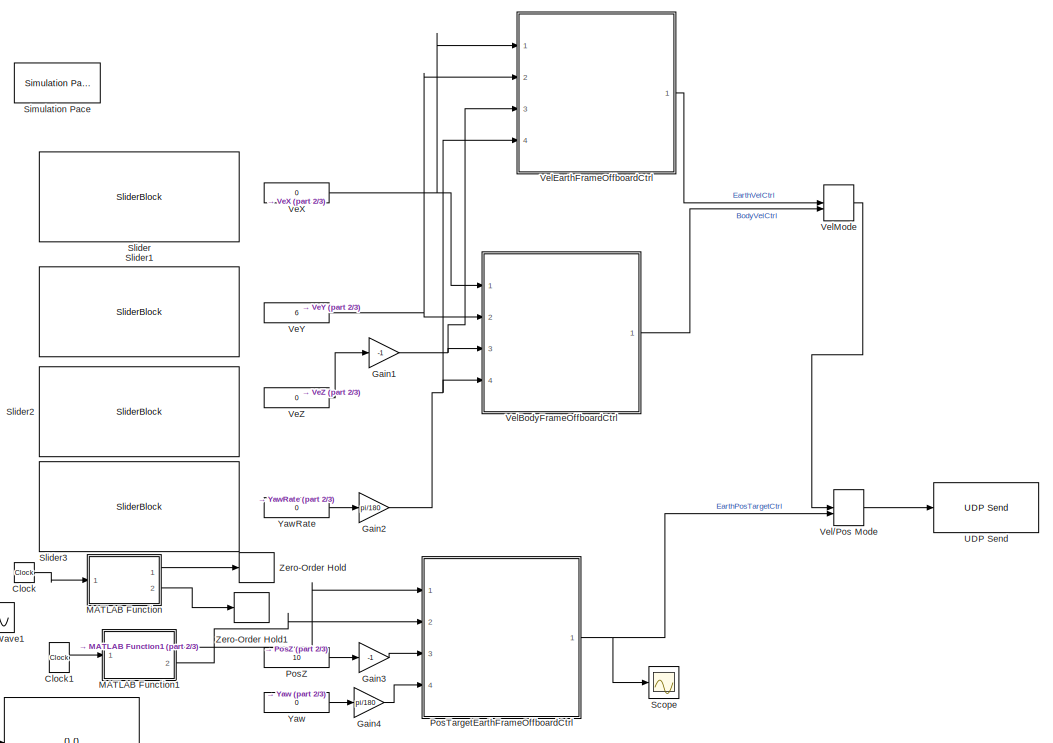
[diagram: root canvas - part 1/3, middle right region]
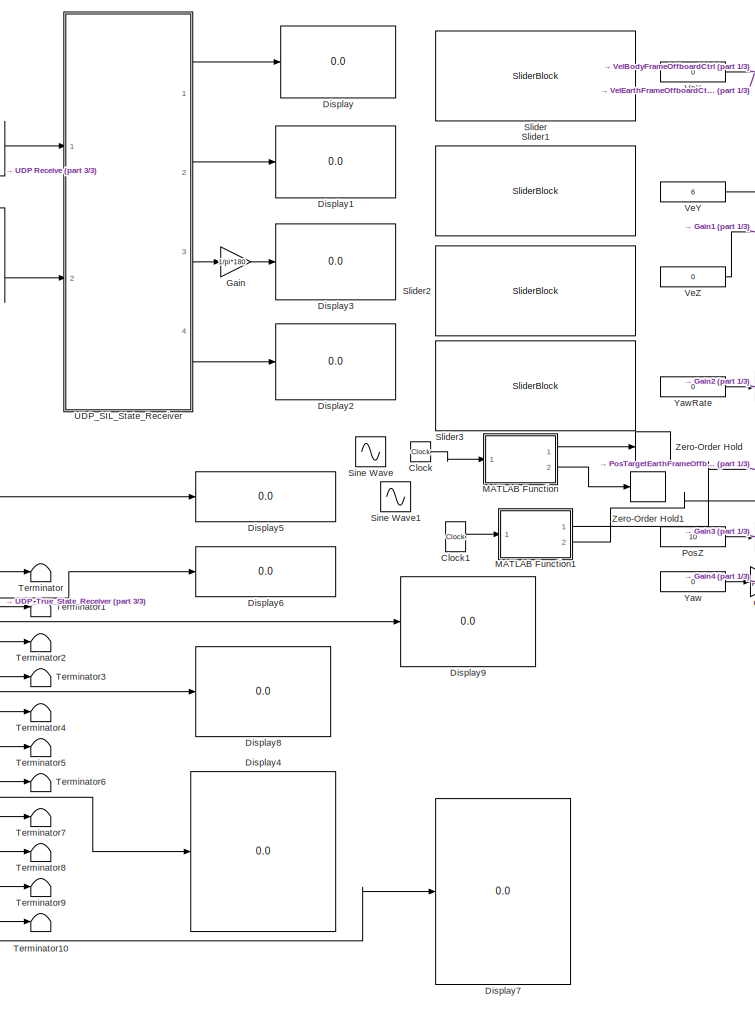
[diagram: root canvas - part 2/3, center side, full height]
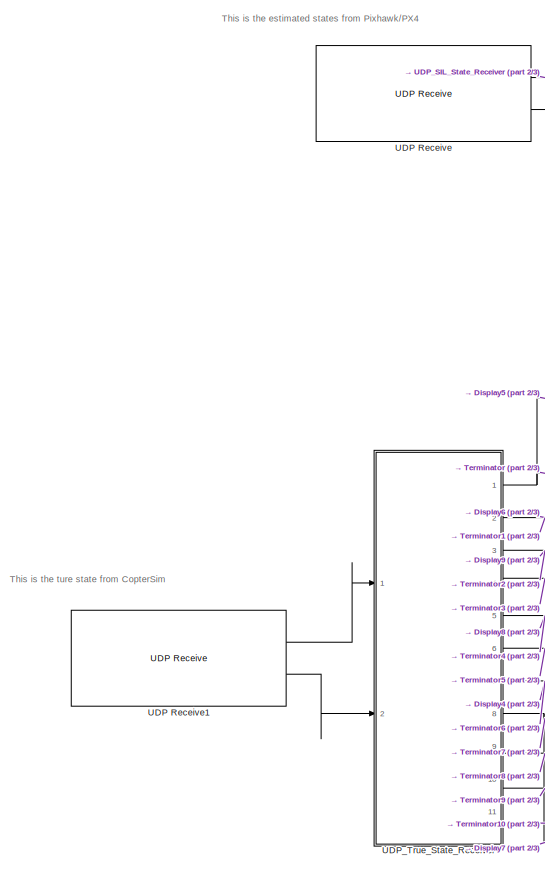
[diagram: root canvas - part 3/3, left side, full height]
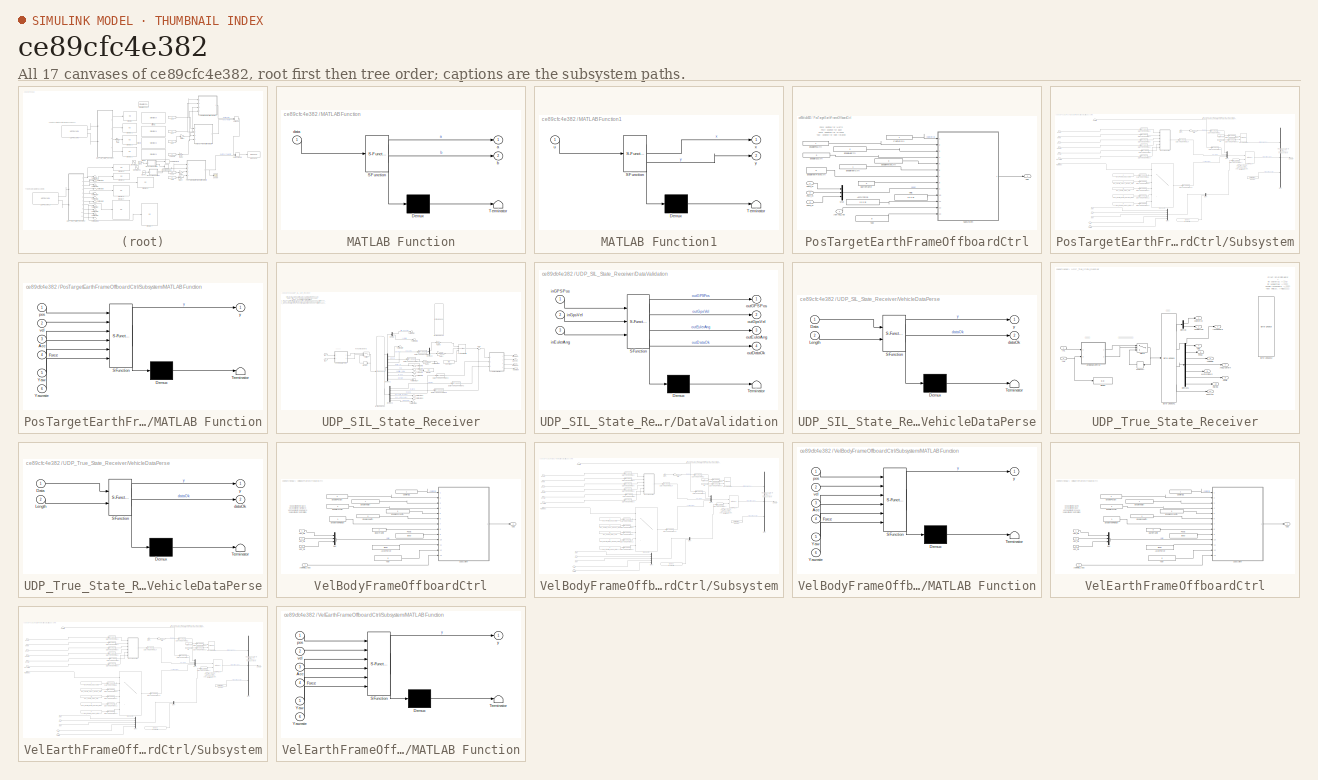
[diagram: thumbnail index - all 17 canvases of the model, root first then tree order]
MODEL slx_ce89cfc4e382
KIND model
CONFIG AbsTol = auto
CONFIG EnableMultiTasking = off
CONFIG FixedStep = 0.01
CONFIG MaxStep = auto
CONFIG MinStep = auto
CONFIG PreLoadFcn = filepath  = fileparts(get_param(bdroot, 'FileName'))\ncd(filepath);
CONFIG RelTol = 1e-3
CONFIG SampleTimeConstraint = Unconstrained
CONFIG SolverName = ode4
CONFIG StartTime = 0.0
CONFIG StopTime = inf
BLOCK [Clock] Clock
BLOCK [Clock] Clock1
BLOCK [Display] Display
  Decimation = 1
  Ports = [1]
BLOCK [Display] Display1
  Decimation = 1
  Ports = [1]
BLOCK [Display] Display2
  Decimation = 1
  Ports = [1]
BLOCK [Display] Display3
  Decimation = 1
  Ports = [1]
BLOCK [Display] Display4
  Decimation = 1
  Ports = [1]
BLOCK [Display] Display5
  Decimation = 1
  Ports = [1]
BLOCK [Display] Display6
  Decimation = 1
  Ports = [1]
BLOCK [Display] Display7
  Decimation = 1
  Ports = [1]
BLOCK [Display] Display8
  Decimation = 1
  Ports = [1]
BLOCK [Display] Display9
  Decimation = 1
  Ports = [1]
BLOCK [Gain] Gain
  Gain = 1/pi*180
BLOCK [Gain] Gain1
  Gain = -1
BLOCK [Gain] Gain2
  Gain = pi/180
BLOCK [Gain] Gain3
  Gain = -1
BLOCK [Gain] Gain4
  Gain = pi/180
BLOCK [SubSystem] MATLAB Function
  ErrorFcn = Stateflow.Translate.translate
  PermitHierarchicalResolution = ExplicitOnly
  Ports = [1, 2]
  RequestExecContextInheritance = off
  SFBlockType = MATLAB Function
  TreatAsAtomicUnit = on
BLOCK [Demux] MATLAB Function/ Demux 
  Outputs = 1
  Ports = [1, 1]
BLOCK [S-Function] MATLAB Function/ SFunction 
  EnableBusSupport = on
  FunctionName = sf_sfun
  PortCounts = [1 3]
  Ports = [1, 3]
  SFcnIsStateOwnerBlock = off
  SFunctionDeploymentMode = off
  Tag = Stateflow S-Function 6
BLOCK [Terminator] MATLAB Function/ Terminator 
BLOCK [Outport] MATLAB Function/a
BLOCK [Outport] MATLAB Function/b
  Port = 2
BLOCK [Inport] MATLAB Function/data
BLOCK [SubSystem] MATLAB Function1
  ErrorFcn = Stateflow.Translate.translate
  PermitHierarchicalResolution = ExplicitOnly
  Ports = [1, 2]
  RequestExecContextInheritance = off
  SFBlockType = MATLAB Function
  TreatAsAtomicUnit = on
BLOCK [Demux] MATLAB Function1/ Demux 
  Outputs = 1
  Ports = [1, 1]
BLOCK [S-Function] MATLAB Function1/ SFunction 
  EnableBusSupport = on
  FunctionName = sf_sfun
  PortCounts = [1 3]
  Ports = [1, 3]
  SFcnIsStateOwnerBlock = off
  SFunctionDeploymentMode = off
  Tag = Stateflow S-Function 7
BLOCK [Terminator] MATLAB Function1/ Terminator 
BLOCK [Inport] MATLAB Function1/u
BLOCK [Outport] MATLAB Function1/x
BLOCK [Outport] MATLAB Function1/y
  Port = 2
BLOCK [SubSystem] PosTargetEarthFrameOffboardCtrl
  Ports = [4, 1]
  RequestExecContextInheritance = off
BLOCK [Constant] PosTargetEarthFrameOffboardCtrl/AccOrForce
  Value = [0 0 0]
BLOCK [Constant] PosTargetEarthFrameOffboardCtrl/CopterID1
BLOCK [Constant] PosTargetEarthFrameOffboardCtrl/EarthFrame
  Value = 0
BLOCK [Constant] PosTargetEarthFrameOffboardCtrl/EnableAccCtrl
  Value = 0
BLOCK [Constant] PosTargetEarthFrameOffboardCtrl/EnableForceCtrl
  Value = 0
BLOCK [Constant] PosTargetEarthFrameOffboardCtrl/EnablePosCtrl
BLOCK [Constant] PosTargetEarthFrameOffboardCtrl/EnableVelCtrl
  Value = 0
BLOCK [Constant] PosTargetEarthFrameOffboardCtrl/EnableYawCtrl
BLOCK [Constant] PosTargetEarthFrameOffboardCtrl/EnableYawRateCtrl
  Value = 0
BLOCK [Mux] PosTargetEarthFrameOffboardCtrl/Mux
  DisplayOption = bar
  Inputs = 3
  Ports = [3, 1]
BLOCK [Inport] PosTargetEarthFrameOffboardCtrl/PosX_m
BLOCK [Inport] PosTargetEarthFrameOffboardCtrl/PosY_m
  Port = 2
BLOCK [Inport] PosTargetEarthFrameOffboardCtrl/PosZ_m
  Port = 3
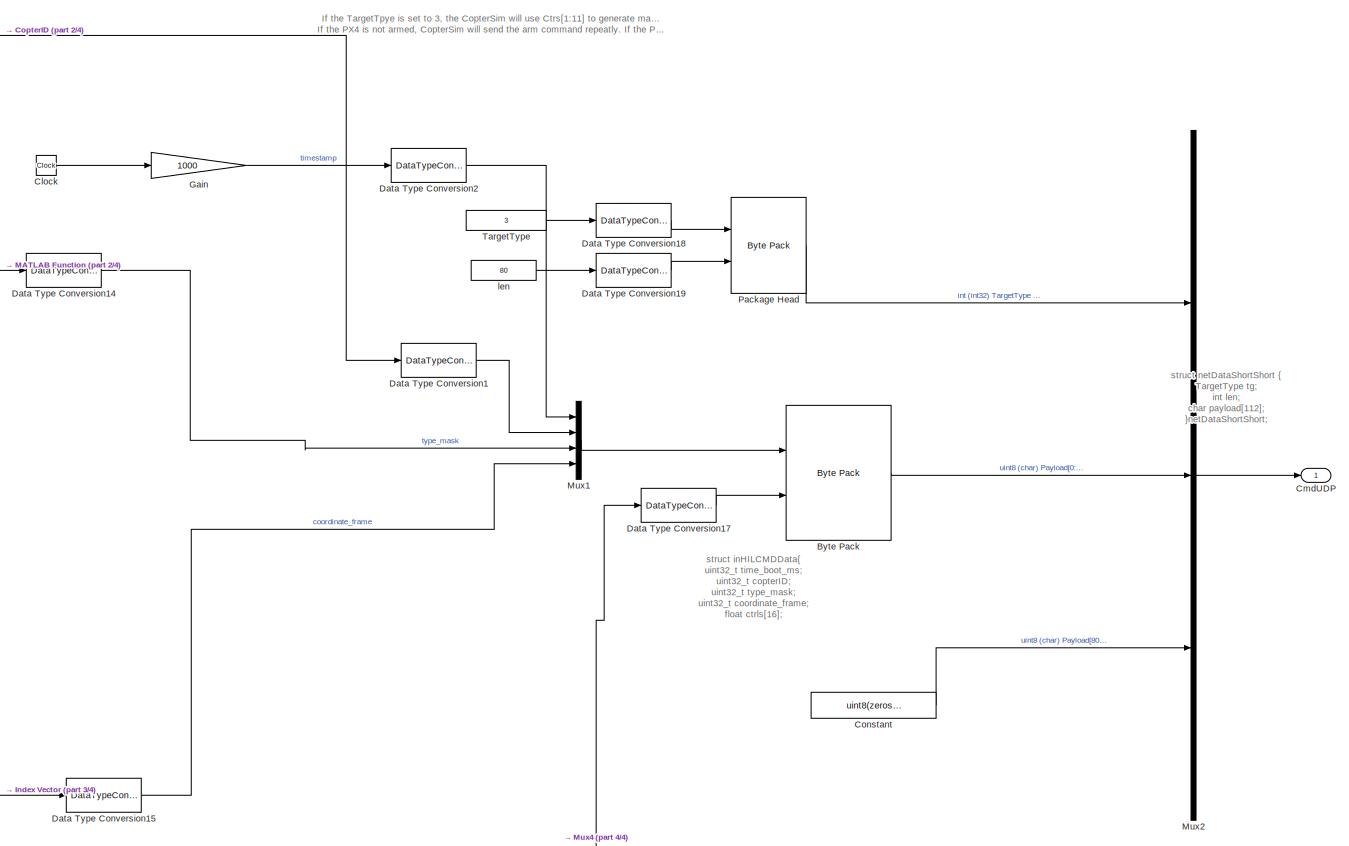
[diagram: PosTargetEarthFrameOffboardCtrl/Subsystem - part 1/4, middle right region]
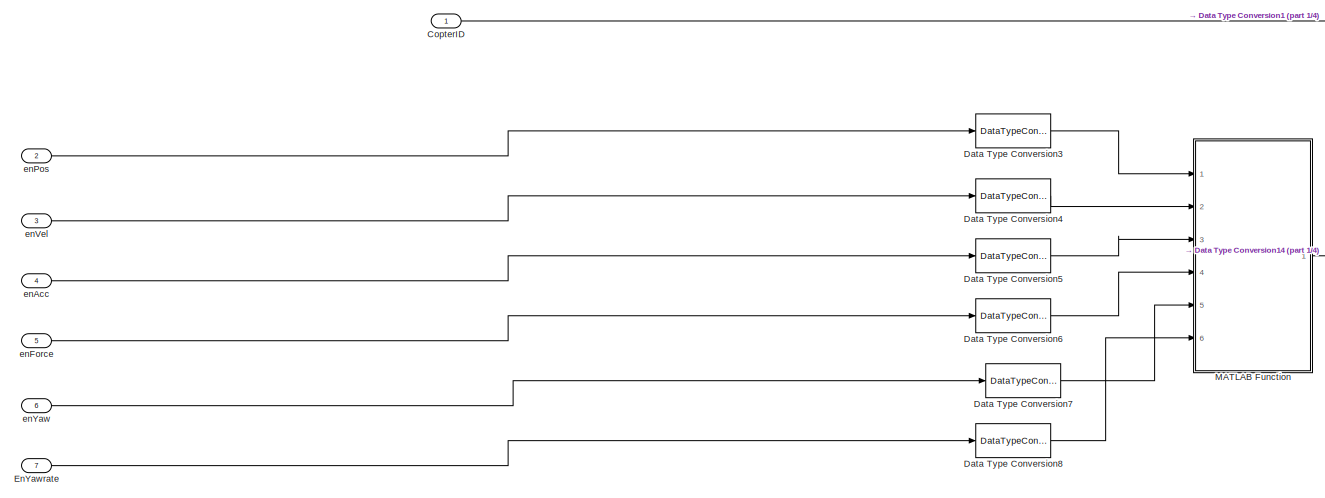
[diagram: PosTargetEarthFrameOffboardCtrl/Subsystem - part 2/4, top left region]
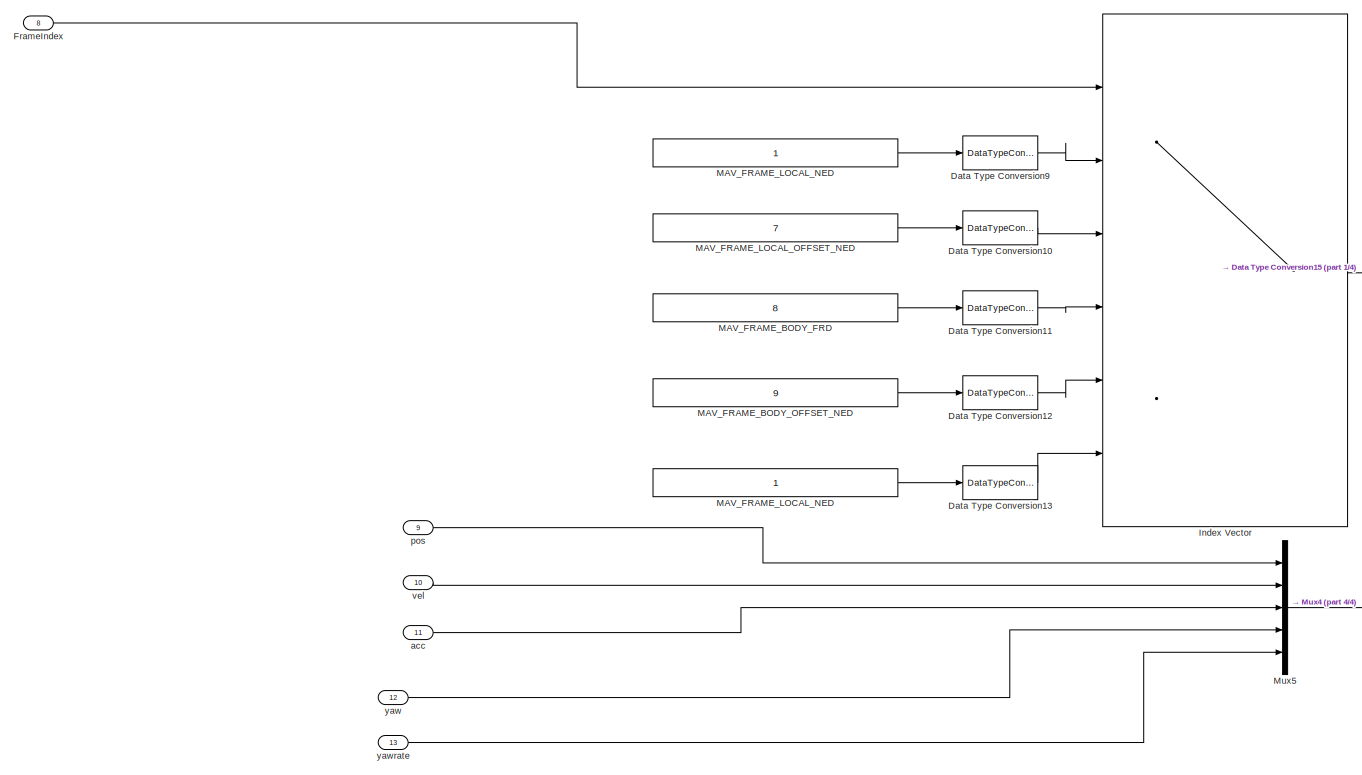
[diagram: PosTargetEarthFrameOffboardCtrl/Subsystem - part 3/4, bottom left region]
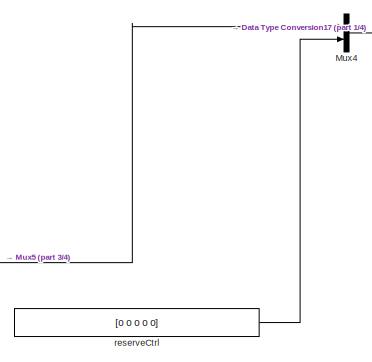
[diagram: PosTargetEarthFrameOffboardCtrl/Subsystem - part 4/4, bottom center region]
BLOCK [SubSystem] PosTargetEarthFrameOffboardCtrl/Subsystem
  Ports = [13, 1]
  RequestExecContextInheritance = off
BLOCK [Reference] PosTargetEarthFrameOffboardCtrl/Subsystem/Byte Pack  REF=etargetslib/Byte Pack
  Ports = [2, 1]
  SourceBlock = etargetslib/Byte Pack
  SourceProductBaseCode = ME
  SourceType = Byte pack
BLOCK [Clock] PosTargetEarthFrameOffboardCtrl/Subsystem/Clock
BLOCK [Outport] PosTargetEarthFrameOffboardCtrl/Subsystem/CmdUDP
  VectorParamsAs1DForOutWhenUnconnected = off
BLOCK [Constant] PosTargetEarthFrameOffboardCtrl/Subsystem/Constant
  Value = uint8(zeros(32,1))
BLOCK [Inport] PosTargetEarthFrameOffboardCtrl/Subsystem/CopterID
BLOCK [DataTypeConversion] PosTargetEarthFrameOffboardCtrl/Subsystem/Data Type Conversion1
  OutDataTypeStr = uint32
  RndMeth = Floor
  SaturateOnIntegerOverflow = off
BLOCK [DataTypeConversion] PosTargetEarthFrameOffboardCtrl/Subsystem/Data Type Conversion10
  OutDataTypeStr = uint8
  RndMeth = Floor
  SaturateOnIntegerOverflow = off
BLOCK [DataTypeConversion] PosTargetEarthFrameOffboardCtrl/Subsystem/Data Type Conversion11
  OutDataTypeStr = uint8
  RndMeth = Floor
  SaturateOnIntegerOverflow = off
BLOCK [DataTypeConversion] PosTargetEarthFrameOffboardCtrl/Subsystem/Data Type Conversion12
  OutDataTypeStr = uint8
  RndMeth = Floor
  SaturateOnIntegerOverflow = off
BLOCK [DataTypeConversion] PosTargetEarthFrameOffboardCtrl/Subsystem/Data Type Conversion13
  OutDataTypeStr = uint8
  RndMeth = Floor
  SaturateOnIntegerOverflow = off
BLOCK [DataTypeConversion] PosTargetEarthFrameOffboardCtrl/Subsystem/Data Type Conversion14
  OutDataTypeStr = uint32
  RndMeth = Floor
  SaturateOnIntegerOverflow = off
BLOCK [DataTypeConversion] PosTargetEarthFrameOffboardCtrl/Subsystem/Data Type Conversion15
  OutDataTypeStr = uint32
  RndMeth = Floor
  SaturateOnIntegerOverflow = off
BLOCK [DataTypeConversion] PosTargetEarthFrameOffboardCtrl/Subsystem/Data Type Conversion17
  LockScale = on
  OutDataTypeStr = single
  RndMeth = Floor
  SaturateOnIntegerOverflow = off
BLOCK [DataTypeConversion] PosTargetEarthFrameOffboardCtrl/Subsystem/Data Type Conversion18
  OutDataTypeStr = uint32
  RndMeth = Floor
  SaturateOnIntegerOverflow = off
BLOCK [DataTypeConversion] PosTargetEarthFrameOffboardCtrl/Subsystem/Data Type Conversion19
  OutDataTypeStr = int32
  RndMeth = Floor
  SaturateOnIntegerOverflow = off
BLOCK [DataTypeConversion] PosTargetEarthFrameOffboardCtrl/Subsystem/Data Type Conversion2
  OutDataTypeStr = uint32
  RndMeth = Round
  SaturateOnIntegerOverflow = off
BLOCK [DataTypeConversion] PosTargetEarthFrameOffboardCtrl/Subsystem/Data Type Conversion3
  OutDataTypeStr = boolean
  RndMeth = Floor
  SaturateOnIntegerOverflow = off
BLOCK [DataTypeConversion] PosTargetEarthFrameOffboardCtrl/Subsystem/Data Type Conversion4
  OutDataTypeStr = boolean
  RndMeth = Floor
  SaturateOnIntegerOverflow = off
BLOCK [DataTypeConversion] PosTargetEarthFrameOffboardCtrl/Subsystem/Data Type Conversion5
  OutDataTypeStr = boolean
  RndMeth = Floor
  SaturateOnIntegerOverflow = off
BLOCK [DataTypeConversion] PosTargetEarthFrameOffboardCtrl/Subsystem/Data Type Conversion6
  OutDataTypeStr = boolean
  RndMeth = Floor
  SaturateOnIntegerOverflow = off
BLOCK [DataTypeConversion] PosTargetEarthFrameOffboardCtrl/Subsystem/Data Type Conversion7
  OutDataTypeStr = boolean
  RndMeth = Floor
  SaturateOnIntegerOverflow = off
BLOCK [DataTypeConversion] PosTargetEarthFrameOffboardCtrl/Subsystem/Data Type Conversion8
  OutDataTypeStr = boolean
  RndMeth = Floor
  SaturateOnIntegerOverflow = off
BLOCK [DataTypeConversion] PosTargetEarthFrameOffboardCtrl/Subsystem/Data Type Conversion9
  OutDataTypeStr = uint8
  RndMeth = Floor
  SaturateOnIntegerOverflow = off
BLOCK [Inport] PosTargetEarthFrameOffboardCtrl/Subsystem/EnYawrate
  Port = 7
BLOCK [Inport] PosTargetEarthFrameOffboardCtrl/Subsystem/FrameIndex
  Port = 8
BLOCK [Gain] PosTargetEarthFrameOffboardCtrl/Subsystem/Gain
  Gain = 1000
BLOCK [MultiPortSwitch] PosTargetEarthFrameOffboardCtrl/Subsystem/Index Vector
  DataPortOrder = Zero-based contiguous
  InputSameDT = off
  Inputs = 5
  Ports = [6, 1]
  SaturateOnIntegerOverflow = off
  zeroidx = on
BLOCK [SubSystem] PosTargetEarthFrameOffboardCtrl/Subsystem/MATLAB Function
  ErrorFcn = Stateflow.Translate.translate
  PermitHierarchicalResolution = ExplicitOnly
  Ports = [6, 1]
  RequestExecContextInheritance = off
  SFBlockType = MATLAB Function
  TreatAsAtomicUnit = on
BLOCK [Demux] PosTargetEarthFrameOffboardCtrl/Subsystem/MATLAB Function/ Demux 
  Outputs = 1
  Ports = [1, 1]
BLOCK [S-Function] PosTargetEarthFrameOffboardCtrl/Subsystem/MATLAB Function/ SFunction 
  EnableBusSupport = on
  FunctionName = sf_sfun
  PortCounts = [6 2]
  Ports = [6, 2]
  SFcnIsStateOwnerBlock = off
  SFunctionDeploymentMode = off
  Tag = Stateflow S-Function 4
BLOCK [Terminator] PosTargetEarthFrameOffboardCtrl/Subsystem/MATLAB Function/ Terminator 
BLOCK [Inport] PosTargetEarthFrameOffboardCtrl/Subsystem/MATLAB Function/Acc
  Port = 3
BLOCK [Inport] PosTargetEarthFrameOffboardCtrl/Subsystem/MATLAB Function/Force
  Port = 4
BLOCK [Inport] PosTargetEarthFrameOffboardCtrl/Subsystem/MATLAB Function/Yaw
  Port = 5
BLOCK [Inport] PosTargetEarthFrameOffboardCtrl/Subsystem/MATLAB Function/Yawrate
  Port = 6
BLOCK [Inport] PosTargetEarthFrameOffboardCtrl/Subsystem/MATLAB Function/pos
BLOCK [Inport] PosTargetEarthFrameOffboardCtrl/Subsystem/MATLAB Function/vel
  Port = 2
BLOCK [Outport] PosTargetEarthFrameOffboardCtrl/Subsystem/MATLAB Function/y
  VectorParamsAs1DForOutWhenUnconnected = off
BLOCK [Constant] PosTargetEarthFrameOffboardCtrl/Subsystem/MAV_FRAME_BODY_FRD
  Value = 8
BLOCK [Constant] PosTargetEarthFrameOffboardCtrl/Subsystem/MAV_FRAME_BODY_OFFSET_NED 
  Value = 9
BLOCK [Constant] PosTargetEarthFrameOffboardCtrl/Subsystem/MAV_FRAME_LOCAL_NED
BLOCK [Constant] PosTargetEarthFrameOffboardCtrl/Subsystem/MAV_FRAME_LOCAL_NED 
BLOCK [Constant] PosTargetEarthFrameOffboardCtrl/Subsystem/MAV_FRAME_LOCAL_OFFSET_NED
  Value = 7
BLOCK [Mux] PosTargetEarthFrameOffboardCtrl/Subsystem/Mux1
  DisplayOption = bar
  Ports = [4, 1]
BLOCK [Mux] PosTargetEarthFrameOffboardCtrl/Subsystem/Mux2
  DisplayOption = bar
  Inputs = 3
  Ports = [3, 1]
BLOCK [Mux] PosTargetEarthFrameOffboardCtrl/Subsystem/Mux4
  DisplayOption = bar
  Inputs = 2
  Ports = [2, 1]
BLOCK [Mux] PosTargetEarthFrameOffboardCtrl/Subsystem/Mux5
  DisplayOption = bar
  Inputs = 5
  Ports = [5, 1]
BLOCK [Reference] PosTargetEarthFrameOffboardCtrl/Subsystem/Package Head  REF=etargetslib/Byte Pack
  Ports = [2, 1]
  SourceBlock = etargetslib/Byte Pack
  SourceProductBaseCode = ME
  SourceType = Byte pack
BLOCK [Constant] PosTargetEarthFrameOffboardCtrl/Subsystem/TargetType
  OutDataTypeStr = Inherit: Inherit via back propagation
  Value = 3
BLOCK [Inport] PosTargetEarthFrameOffboardCtrl/Subsystem/acc
  Port = 11
  PortDimensions = 3
BLOCK [Inport] PosTargetEarthFrameOffboardCtrl/Subsystem/enAcc
  Port = 4
BLOCK [Inport] PosTargetEarthFrameOffboardCtrl/Subsystem/enForce
  Port = 5
BLOCK [Inport] PosTargetEarthFrameOffboardCtrl/Subsystem/enPos
  Port = 2
BLOCK [Inport] PosTargetEarthFrameOffboardCtrl/Subsystem/enVel
  Port = 3
BLOCK [Inport] PosTargetEarthFrameOffboardCtrl/Subsystem/enYaw
  Port = 6
BLOCK [Constant] PosTargetEarthFrameOffboardCtrl/Subsystem/len
  OutDataTypeStr = Inherit: Inherit via back propagation
  Value = 80
BLOCK [Inport] PosTargetEarthFrameOffboardCtrl/Subsystem/pos
  Port = 9
  PortDimensions = 3
BLOCK [Constant] PosTargetEarthFrameOffboardCtrl/Subsystem/reserveCtrl
  Value = [0 0 0 0 0]
BLOCK [Inport] PosTargetEarthFrameOffboardCtrl/Subsystem/vel
  Port = 10
  PortDimensions = 3
BLOCK [Inport] PosTargetEarthFrameOffboardCtrl/Subsystem/yaw
  Port = 12
  PortDimensions = 1
BLOCK [Inport] PosTargetEarthFrameOffboardCtrl/Subsystem/yawrate
  Port = 13
  PortDimensions = 1
BLOCK [Constant] PosTargetEarthFrameOffboardCtrl/VelE
  Value = [0 0 0]
BLOCK [Constant] PosTargetEarthFrameOffboardCtrl/Yaw
  Value = 0
BLOCK [Outport] PosTargetEarthFrameOffboardCtrl/udp
  VectorParamsAs1DForOutWhenUnconnected = off
BLOCK [Inport] PosTargetEarthFrameOffboardCtrl/yawAng_rad
  Port = 4
  PortDimensions = 1
BLOCK [Constant] PosZ
  Value = 10
BLOCK [Scope] Scope
  Floating = off
  NumInputPorts = 1
  Ports = [1]
  ScopeSpecificationString = Simulink.scopes.TimeScopeBlockCfg('CurrentConfiguration', extmgr.ConfigurationSet(extmgr.Configuration('Core','General UI',true),extmgr.Configuration('Core','Source UI',true),extmgr.Configuration('Sources','WiredSimulink',true),extmgr.Configuration('Visuals','Time Domain',true,'SerializedDisplays',{struct('MinYLimReal','-31.00000','MaxYLimReal','279.00000','YLabelReal','','MinYLimMag','0.00000','M...<+4254ch>
BLOCK [Reference] Simulation Pace  REF=aerolibanimutils/Simulation Pace
  AttributesFormatString = %<SleepMode>\n%<SimulationPace> sec/sec
  Ports = []
  SourceBlock = aerolibanimutils/Simulation Pace
  SourceProductBaseCode = AE
  SourceType = Simulation Pace
BLOCK [Sin] Sine Wave
  Amplitude = 10
  Frequency = 0.2
  Ports = [0, 1]
  SampleTime = 0
BLOCK [Sin] Sine Wave1
  Amplitude = 10
  Frequency = 0.2
  Phase = pi/2
  Ports = [0, 1]
  SampleTime = 0
BLOCK [SliderBlock] Slider
  ScaleMax = 10
  ScaleMin = -10
BLOCK [SliderBlock] Slider1
  ScaleMax = 10
  ScaleMin = -10
BLOCK [SliderBlock] Slider2
  ScaleMax = 10
  ScaleMin = -10
BLOCK [SliderBlock] Slider3
  ScaleMax = 180
  ScaleMin = -180
BLOCK [Terminator] Terminator
BLOCK [Terminator] Terminator1
BLOCK [Terminator] Terminator10
BLOCK [Terminator] Terminator2
BLOCK [Terminator] Terminator3
BLOCK [Terminator] Terminator4
BLOCK [Terminator] Terminator5
BLOCK [Terminator] Terminator6
BLOCK [Terminator] Terminator7
BLOCK [Terminator] Terminator8
BLOCK [Terminator] Terminator9
BLOCK [Reference] UDP Receive  REF=slrealtimeiplib/UDP Receive
  Ports = [0, 2]
  SourceBlock = slrealtimeiplib/UDP Receive
  SourceProductBaseCode = XP
  SourceType = slrealtimeudpreceive
BLOCK [Reference] UDP Receive1  REF=slrealtimeiplib/UDP Receive
  Ports = [0, 2]
  SourceBlock = slrealtimeiplib/UDP Receive
  SourceProductBaseCode = XP
  SourceType = slrealtimeudpreceive
BLOCK [Reference] UDP Send  REF=dspnetwork/UDP Send
  Ports = [1]
  SourceBlock = dspnetwork/UDP Send
  SourceProductBaseCode = SL
  SourceType = UDP Send
BLOCK [SubSystem] UDP_SIL_State_Receiver
  Ports = [2, 4]
  RequestExecContextInheritance = off
BLOCK [Reference] UDP_SIL_State_Receiver/Byte Unpack1  REF=etargetslib/Byte Unpack
  Ports = [1, 3]
  SourceBlock = etargetslib/Byte Unpack
  SourceProductBaseCode = ME
  SourceType = Byte Unpack
BLOCK [Reference] UDP_SIL_State_Receiver/Byte Unpack2  REF=etargetslib/Byte Unpack
  Commented = on
  Ports = [1, 11]
  SourceBlock = etargetslib/Byte Unpack
  SourceProductBaseCode = ME
  SourceType = Byte Unpack
BLOCK [Constant] UDP_SIL_State_Receiver/Constant
  Value = -50
BLOCK [DataTypeConversion] UDP_SIL_State_Receiver/Data Type Conversion1
  OutDataTypeStr = double
  RndMeth = Floor
  SaturateOnIntegerOverflow = off
BLOCK [DataTypeConversion] UDP_SIL_State_Receiver/Data Type Conversion2
  OutDataTypeStr = double
  RndMeth = Floor
  SaturateOnIntegerOverflow = off
BLOCK [DataTypeConversion] UDP_SIL_State_Receiver/Data Type Conversion3
  OutDataTypeStr = double
  RndMeth = Floor
  SaturateOnIntegerOverflow = off
BLOCK [DataTypeConversion] UDP_SIL_State_Receiver/Data Type Conversion4
  OutDataTypeStr = double
  RndMeth = Floor
  SaturateOnIntegerOverflow = off
BLOCK [DataTypeConversion] UDP_SIL_State_Receiver/Data Type Conversion5
  OutDataTypeStr = double
  RndMeth = Floor
  SaturateOnIntegerOverflow = off
BLOCK [SubSystem] UDP_SIL_State_Receiver/DataValidation
  ErrorFcn = Stateflow.Translate.translate
  PermitHierarchicalResolution = ExplicitOnly
  Ports = [3, 4]
  RequestExecContextInheritance = off
  SFBlockType = MATLAB Function
  TreatAsAtomicUnit = on
BLOCK [Demux] UDP_SIL_State_Receiver/DataValidation/ Demux 
  Outputs = 1
  Ports = [1, 1]
BLOCK [S-Function] UDP_SIL_State_Receiver/DataValidation/ SFunction 
  EnableBusSupport = on
  FunctionName = sf_sfun
  PortCounts = [3 5]
  Ports = [3, 5]
  SFcnIsStateOwnerBlock = off
  SFunctionDeploymentMode = off
  Tag = Stateflow S-Function 2
BLOCK [Terminator] UDP_SIL_State_Receiver/DataValidation/ Terminator 
BLOCK [Inport] UDP_SIL_State_Receiver/DataValidation/inEulerAng
  Port = 3
BLOCK [Inport] UDP_SIL_State_Receiver/DataValidation/inGPSPos
BLOCK [Inport] UDP_SIL_State_Receiver/DataValidation/inGpsVel
  Port = 2
BLOCK [Outport] UDP_SIL_State_Receiver/DataValidation/outDataOk
  Port = 4
  VectorParamsAs1DForOutWhenUnconnected = off
BLOCK [Outport] UDP_SIL_State_Receiver/DataValidation/outEulerAng
  Port = 3
  VectorParamsAs1DForOutWhenUnconnected = off
BLOCK [Outport] UDP_SIL_State_Receiver/DataValidation/outGPSPos
  VectorParamsAs1DForOutWhenUnconnected = off
BLOCK [Outport] UDP_SIL_State_Receiver/DataValidation/outGpsVel
  Port = 2
  VectorParamsAs1DForOutWhenUnconnected = off
BLOCK [Demux] UDP_SIL_State_Receiver/Demux
  Outputs = 2
  Ports = [1, 2]
BLOCK [Demux] UDP_SIL_State_Receiver/Demux1
  Outputs = [3,3,3,1,1,1,1,1]
  Ports = [1, 8]
BLOCK [Demux] UDP_SIL_State_Receiver/Demux2
  Outputs = [2,1]
  Ports = [1, 2]
BLOCK [Demux] UDP_SIL_State_Receiver/Demux3
  Outputs = [3,3,3,1,1,1]
  Ports = [1, 6]
BLOCK [Display] UDP_SIL_State_Receiver/Display
  Decimation = 1
  Ports = [1]
BLOCK [Outport] UDP_SIL_State_Receiver/EulerAng
  Port = 3
  VectorParamsAs1DForOutWhenUnconnected = off
BLOCK [Gain] UDP_SIL_State_Receiver/Gain1
  Gain = 1/1000
BLOCK [Gain] UDP_SIL_State_Receiver/Gain2
  Gain = 1/100
BLOCK [Gain] UDP_SIL_State_Receiver/Gain5
  Gain = 1e-7
BLOCK [Outport] UDP_SIL_State_Receiver/GpsPos
  VectorParamsAs1DForOutWhenUnconnected = off
BLOCK [Outport] UDP_SIL_State_Receiver/GpsVel
  Port = 2
  VectorParamsAs1DForOutWhenUnconnected = off
BLOCK [Inport] UDP_SIL_State_Receiver/In1
BLOCK [Inport] UDP_SIL_State_Receiver/In2
  Port = 2
BLOCK [Outport] UDP_SIL_State_Receiver/IsDataOK
  Port = 4
  VectorParamsAs1DForOutWhenUnconnected = off
BLOCK [Reference] UDP_SIL_State_Receiver/LLA to Flat Earth  REF=aerolibtransform2/LLA to Flat Earth
  Ports = [3, 1]
  SourceBlock = aerolibtransform2/LLA to Flat Earth
  SourceProductBaseCode = AE
  SourceType = LLA to Flat Earth
BLOCK [Memory] UDP_SIL_State_Receiver/Memory
  InitialCondition = uint8(zeros(112,1))
BLOCK [Sum] UDP_SIL_State_Receiver/Sum
  Inputs = |++
  Ports = [2, 1]
BLOCK [Switch] UDP_SIL_State_Receiver/Switch
  Criteria = u2 > Threshold
  InputSameDT = off
  SaturateOnIntegerOverflow = off
  Threshold = 0.5
BLOCK [Terminator] UDP_SIL_State_Receiver/Terminator
BLOCK [Terminator] UDP_SIL_State_Receiver/Terminator1
BLOCK [Terminator] UDP_SIL_State_Receiver/Terminator11
BLOCK [Terminator] UDP_SIL_State_Receiver/Terminator12
BLOCK [Terminator] UDP_SIL_State_Receiver/Terminator13
BLOCK [Terminator] UDP_SIL_State_Receiver/Terminator14
BLOCK [Terminator] UDP_SIL_State_Receiver/Terminator15
BLOCK [Terminator] UDP_SIL_State_Receiver/Terminator3
BLOCK [Terminator] UDP_SIL_State_Receiver/Terminator4
BLOCK [Terminator] UDP_SIL_State_Receiver/Terminator5
BLOCK [Terminator] UDP_SIL_State_Receiver/Terminator6
BLOCK [Terminator] UDP_SIL_State_Receiver/Terminator7
BLOCK [SubSystem] UDP_SIL_State_Receiver/VehicleDataPerse
  ErrorFcn = Stateflow.Translate.translate
  PermitHierarchicalResolution = ExplicitOnly
  Ports = [2, 2]
  RequestExecContextInheritance = off
  SFBlockType = MATLAB Function
  TreatAsAtomicUnit = on
BLOCK [Demux] UDP_SIL_State_Receiver/VehicleDataPerse/ Demux 
  Outputs = 1
  Ports = [1, 1]
BLOCK [S-Function] UDP_SIL_State_Receiver/VehicleDataPerse/ SFunction 
  EnableBusSupport = on
  FunctionName = sf_sfun
  PortCounts = [2 3]
  Ports = [2, 3]
  SFcnIsStateOwnerBlock = off
  SFunctionDeploymentMode = off
  Tag = Stateflow S-Function 69
BLOCK [Terminator] UDP_SIL_State_Receiver/VehicleDataPerse/ Terminator 
BLOCK [Inport] UDP_SIL_State_Receiver/VehicleDataPerse/Data
BLOCK [Inport] UDP_SIL_State_Receiver/VehicleDataPerse/Length
  Port = 2
BLOCK [Outport] UDP_SIL_State_Receiver/VehicleDataPerse/dataOk
  Port = 2
  VectorParamsAs1DForOutWhenUnconnected = off
BLOCK [Outport] UDP_SIL_State_Receiver/VehicleDataPerse/y
  VectorParamsAs1DForOutWhenUnconnected = off
BLOCK [SubSystem] UDP_True_State_Receiver
  Ports = [2, 11]
  RequestExecContextInheritance = off
BLOCK [Outport] UDP_True_State_Receiver/AccB
  Port = 9
  VectorParamsAs1DForOutWhenUnconnected = off
BLOCK [Outport] UDP_True_State_Receiver/AngEuler
  Port = 6
  VectorParamsAs1DForOutWhenUnconnected = off
BLOCK [Outport] UDP_True_State_Receiver/AngQuatern
  Port = 7
  VectorParamsAs1DForOutWhenUnconnected = off
BLOCK [Reference] UDP_True_State_Receiver/Byte Unpack1  REF=etargetslib/Byte Unpack
  Ports = [1, 4]
  SourceBlock = etargetslib/Byte Unpack
  SourceProductBaseCode = ME
  SourceType = Byte Unpack
BLOCK [Reference] UDP_True_State_Receiver/Byte Unpack2  REF=etargetslib/Byte Unpack
  Commented = on
  Ports = [1, 11]
  SourceBlock = etargetslib/Byte Unpack
  SourceProductBaseCode = ME
  SourceType = Byte Unpack
BLOCK [Demux] UDP_True_State_Receiver/Demux
  Outputs = 2
  Ports = [1, 2]
BLOCK [Demux] UDP_True_State_Receiver/Demux1
  Outputs = [3,3,3,4,8,3,3]
  Ports = [1, 7]
BLOCK [Display] UDP_True_State_Receiver/Display
  Decimation = 1
  Ports = [1]
BLOCK [Inport] UDP_True_State_Receiver/In1
BLOCK [Inport] UDP_True_State_Receiver/In2
  Port = 2
BLOCK [Memory] UDP_True_State_Receiver/Memory
  InitialCondition = uint8(zeros(152,1))
BLOCK [Outport] UDP_True_State_Receiver/MotorRPMS
  Port = 8
  VectorParamsAs1DForOutWhenUnconnected = off
BLOCK [Outport] UDP_True_State_Receiver/PosE
  Port = 5
  VectorParamsAs1DForOutWhenUnconnected = off
BLOCK [Outport] UDP_True_State_Receiver/PosGPS
  Port = 11
  VectorParamsAs1DForOutWhenUnconnected = off
BLOCK [Outport] UDP_True_State_Receiver/RateB
  Port = 10
  VectorParamsAs1DForOutWhenUnconnected = off
BLOCK [Switch] UDP_True_State_Receiver/Switch
  Criteria = u2 > Threshold
  InputSameDT = off
  SaturateOnIntegerOverflow = off
  Threshold = 0.5
BLOCK [SubSystem] UDP_True_State_Receiver/VehicleDataPerse
  ErrorFcn = Stateflow.Translate.translate
  PermitHierarchicalResolution = ExplicitOnly
  Ports = [2, 2]
  RequestExecContextInheritance = off
  SFBlockType = MATLAB Function
  TreatAsAtomicUnit = on
BLOCK [Demux] UDP_True_State_Receiver/VehicleDataPerse/ Demux 
  Outputs = 1
  Ports = [1, 1]
BLOCK [S-Function] UDP_True_State_Receiver/VehicleDataPerse/ SFunction 
  EnableBusSupport = on
  FunctionName = sf_sfun
  PortCounts = [2 3]
  Ports = [2, 3]
  SFcnIsStateOwnerBlock = off
  SFunctionDeploymentMode = off
  Tag = Stateflow S-Function 5
BLOCK [Terminator] UDP_True_State_Receiver/VehicleDataPerse/ Terminator 
BLOCK [Inport] UDP_True_State_Receiver/VehicleDataPerse/Data
BLOCK [Inport] UDP_True_State_Receiver/VehicleDataPerse/Length
  Port = 2
BLOCK [Outport] UDP_True_State_Receiver/VehicleDataPerse/dataOk
  Port = 2
  VectorParamsAs1DForOutWhenUnconnected = off
BLOCK [Outport] UDP_True_State_Receiver/VehicleDataPerse/y
  VectorParamsAs1DForOutWhenUnconnected = off
BLOCK [Outport] UDP_True_State_Receiver/VelE
  Port = 4
  VectorParamsAs1DForOutWhenUnconnected = off
BLOCK [Outport] UDP_True_State_Receiver/copterID
  VectorParamsAs1DForOutWhenUnconnected = off
BLOCK [Outport] UDP_True_State_Receiver/runnedTime
  Port = 3
  VectorParamsAs1DForOutWhenUnconnected = off
BLOCK [Outport] UDP_True_State_Receiver/vehicleType
  Port = 2
  VectorParamsAs1DForOutWhenUnconnected = off
BLOCK [Constant] VeX
  Value = 0
BLOCK [Constant] VeY
  Value = 6
BLOCK [Constant] VeZ
  Value = 0
BLOCK [ManualSwitch] Vel//Pos Mode
  CurrentSetting = 0
BLOCK [SubSystem] VelBodyFrameOffboardCtrl
  Ports = [4, 1]
  RequestExecContextInheritance = off
BLOCK [Constant] VelBodyFrameOffboardCtrl/AccOrForce
  Value = [0 0 0]
BLOCK [Constant] VelBodyFrameOffboardCtrl/BodyFrame
  Value = 2
BLOCK [Constant] VelBodyFrameOffboardCtrl/CopterID1
BLOCK [Constant] VelBodyFrameOffboardCtrl/EnableAccCtrl
  Value = 0
BLOCK [Constant] VelBodyFrameOffboardCtrl/EnableForceCtrl
  Value = 0
BLOCK [Constant] VelBodyFrameOffboardCtrl/EnablePosCtrl
  Value = 0
BLOCK [Constant] VelBodyFrameOffboardCtrl/EnableVelCtrl
BLOCK [Constant] VelBodyFrameOffboardCtrl/EnableYawCtrl
  Value = 0
BLOCK [Constant] VelBodyFrameOffboardCtrl/EnableYawRateCtrl
BLOCK [Mux] VelBodyFrameOffboardCtrl/Mux
  DisplayOption = bar
  Inputs = 3
  Ports = [3, 1]
BLOCK [Constant] VelBodyFrameOffboardCtrl/PosE
  Value = [0 0 0]
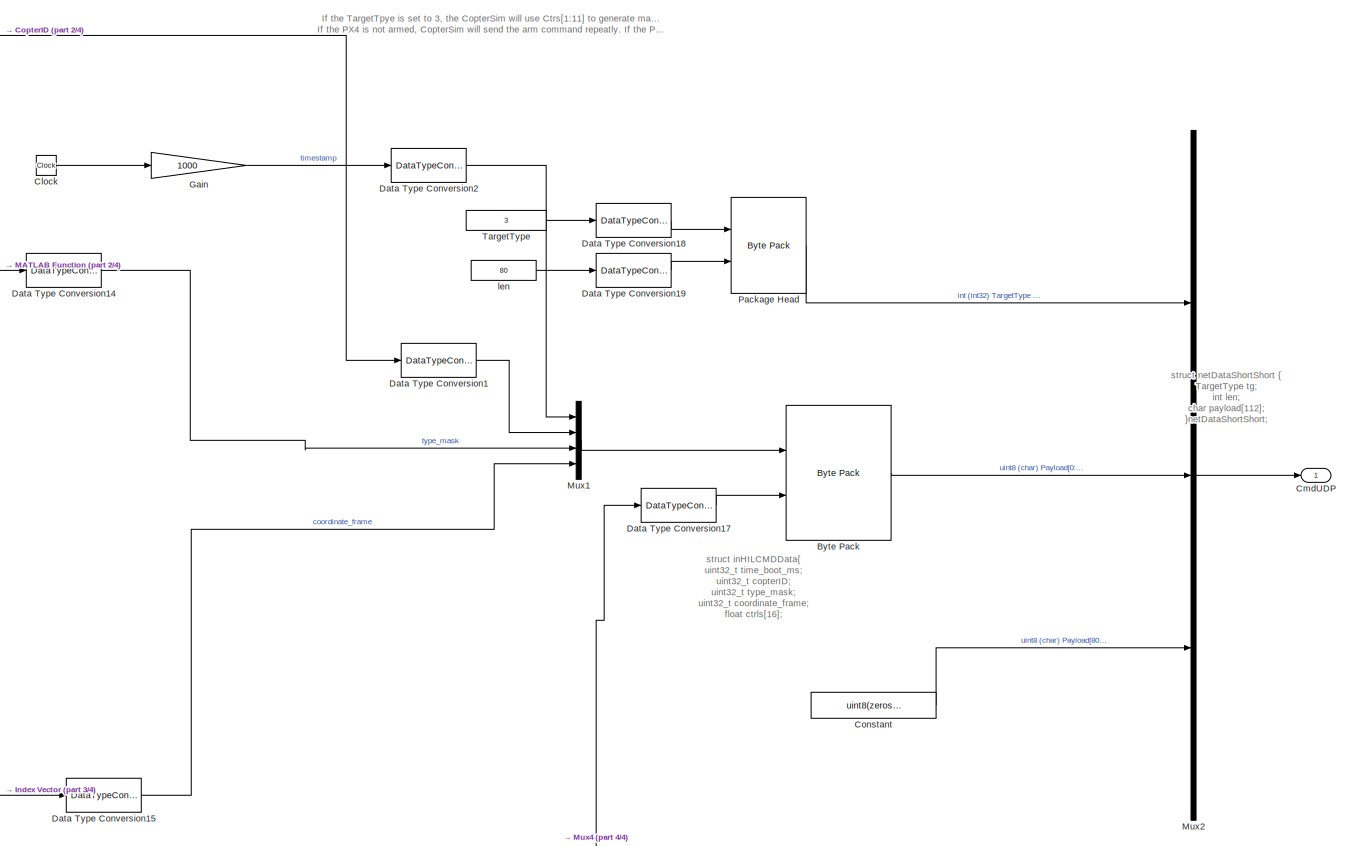
[diagram: VelBodyFrameOffboardCtrl/Subsystem - part 1/4, middle right region]
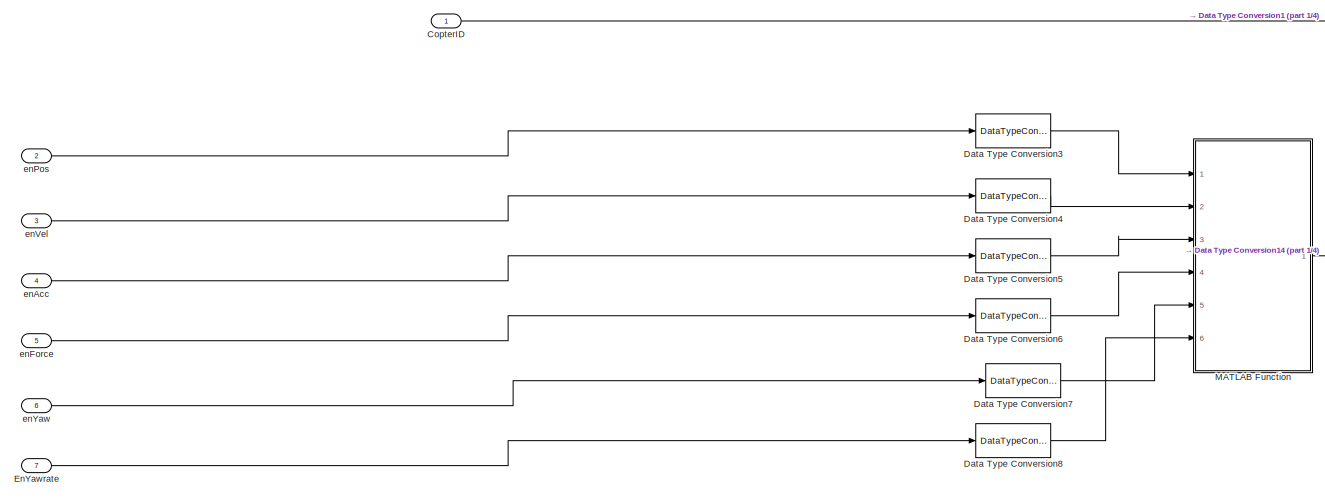
[diagram: VelBodyFrameOffboardCtrl/Subsystem - part 2/4, top left region]
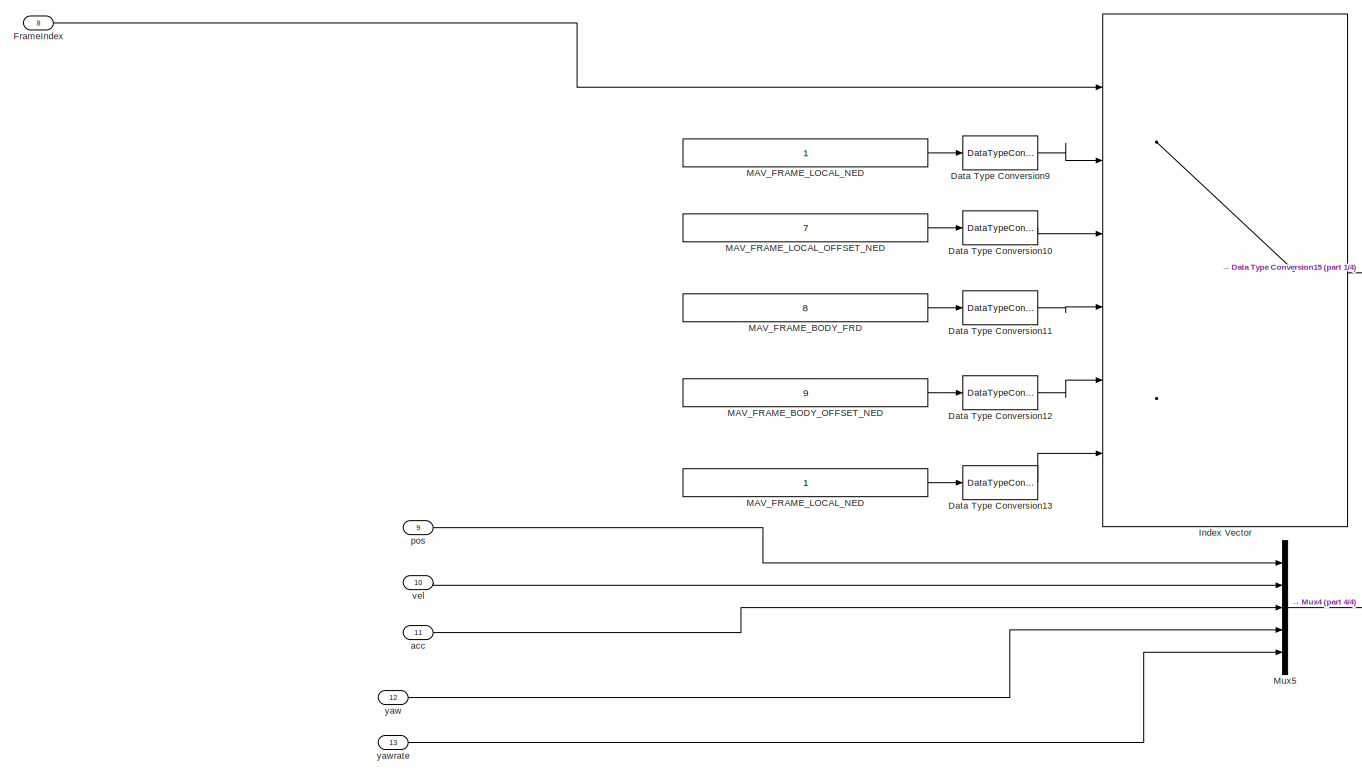
[diagram: VelBodyFrameOffboardCtrl/Subsystem - part 3/4, bottom left region]
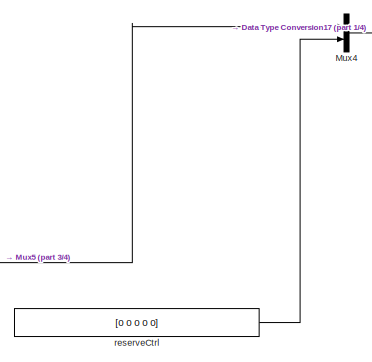
[diagram: VelBodyFrameOffboardCtrl/Subsystem - part 4/4, bottom center region]
BLOCK [SubSystem] VelBodyFrameOffboardCtrl/Subsystem
  Ports = [13, 1]
  RequestExecContextInheritance = off
BLOCK [Reference] VelBodyFrameOffboardCtrl/Subsystem/Byte Pack  REF=etargetslib/Byte Pack
  Ports = [2, 1]
  SourceBlock = etargetslib/Byte Pack
  SourceProductBaseCode = ME
  SourceType = Byte pack
BLOCK [Clock] VelBodyFrameOffboardCtrl/Subsystem/Clock
BLOCK [Outport] VelBodyFrameOffboardCtrl/Subsystem/CmdUDP
  VectorParamsAs1DForOutWhenUnconnected = off
BLOCK [Constant] VelBodyFrameOffboardCtrl/Subsystem/Constant
  Value = uint8(zeros(32,1))
BLOCK [Inport] VelBodyFrameOffboardCtrl/Subsystem/CopterID
BLOCK [DataTypeConversion] VelBodyFrameOffboardCtrl/Subsystem/Data Type Conversion1
  OutDataTypeStr = uint32
  RndMeth = Floor
  SaturateOnIntegerOverflow = off
BLOCK [DataTypeConversion] VelBodyFrameOffboardCtrl/Subsystem/Data Type Conversion10
  OutDataTypeStr = uint8
  RndMeth = Floor
  SaturateOnIntegerOverflow = off
BLOCK [DataTypeConversion] VelBodyFrameOffboardCtrl/Subsystem/Data Type Conversion11
  OutDataTypeStr = uint8
  RndMeth = Floor
  SaturateOnIntegerOverflow = off
BLOCK [DataTypeConversion] VelBodyFrameOffboardCtrl/Subsystem/Data Type Conversion12
  OutDataTypeStr = uint8
  RndMeth = Floor
  SaturateOnIntegerOverflow = off
BLOCK [DataTypeConversion] VelBodyFrameOffboardCtrl/Subsystem/Data Type Conversion13
  OutDataTypeStr = uint8
  RndMeth = Floor
  SaturateOnIntegerOverflow = off
BLOCK [DataTypeConversion] VelBodyFrameOffboardCtrl/Subsystem/Data Type Conversion14
  OutDataTypeStr = uint32
  RndMeth = Floor
  SaturateOnIntegerOverflow = off
BLOCK [DataTypeConversion] VelBodyFrameOffboardCtrl/Subsystem/Data Type Conversion15
  OutDataTypeStr = uint32
  RndMeth = Floor
  SaturateOnIntegerOverflow = off
BLOCK [DataTypeConversion] VelBodyFrameOffboardCtrl/Subsystem/Data Type Conversion17
  LockScale = on
  OutDataTypeStr = single
  RndMeth = Floor
  SaturateOnIntegerOverflow = off
BLOCK [DataTypeConversion] VelBodyFrameOffboardCtrl/Subsystem/Data Type Conversion18
  OutDataTypeStr = uint32
  RndMeth = Floor
  SaturateOnIntegerOverflow = off
BLOCK [DataTypeConversion] VelBodyFrameOffboardCtrl/Subsystem/Data Type Conversion19
  OutDataTypeStr = int32
  RndMeth = Floor
  SaturateOnIntegerOverflow = off
BLOCK [DataTypeConversion] VelBodyFrameOffboardCtrl/Subsystem/Data Type Conversion2
  OutDataTypeStr = uint32
  RndMeth = Round
  SaturateOnIntegerOverflow = off
BLOCK [DataTypeConversion] VelBodyFrameOffboardCtrl/Subsystem/Data Type Conversion3
  OutDataTypeStr = boolean
  RndMeth = Floor
  SaturateOnIntegerOverflow = off
BLOCK [DataTypeConversion] VelBodyFrameOffboardCtrl/Subsystem/Data Type Conversion4
  OutDataTypeStr = boolean
  RndMeth = Floor
  SaturateOnIntegerOverflow = off
BLOCK [DataTypeConversion] VelBodyFrameOffboardCtrl/Subsystem/Data Type Conversion5
  OutDataTypeStr = boolean
  RndMeth = Floor
  SaturateOnIntegerOverflow = off
BLOCK [DataTypeConversion] VelBodyFrameOffboardCtrl/Subsystem/Data Type Conversion6
  OutDataTypeStr = boolean
  RndMeth = Floor
  SaturateOnIntegerOverflow = off
BLOCK [DataTypeConversion] VelBodyFrameOffboardCtrl/Subsystem/Data Type Conversion7
  OutDataTypeStr = boolean
  RndMeth = Floor
  SaturateOnIntegerOverflow = off
BLOCK [DataTypeConversion] VelBodyFrameOffboardCtrl/Subsystem/Data Type Conversion8
  OutDataTypeStr = boolean
  RndMeth = Floor
  SaturateOnIntegerOverflow = off
BLOCK [DataTypeConversion] VelBodyFrameOffboardCtrl/Subsystem/Data Type Conversion9
  OutDataTypeStr = uint8
  RndMeth = Floor
  SaturateOnIntegerOverflow = off
BLOCK [Inport] VelBodyFrameOffboardCtrl/Subsystem/EnYawrate
  Port = 7
BLOCK [Inport] VelBodyFrameOffboardCtrl/Subsystem/FrameIndex
  Port = 8
BLOCK [Gain] VelBodyFrameOffboardCtrl/Subsystem/Gain
  Gain = 1000
BLOCK [MultiPortSwitch] VelBodyFrameOffboardCtrl/Subsystem/Index Vector
  DataPortOrder = Zero-based contiguous
  InputSameDT = off
  Inputs = 5
  Ports = [6, 1]
  SaturateOnIntegerOverflow = off
  zeroidx = on
BLOCK [SubSystem] VelBodyFrameOffboardCtrl/Subsystem/MATLAB Function
  ErrorFcn = Stateflow.Translate.translate
  PermitHierarchicalResolution = ExplicitOnly
  Ports = [6, 1]
  RequestExecContextInheritance = off
  SFBlockType = MATLAB Function
  TreatAsAtomicUnit = on
BLOCK [Demux] VelBodyFrameOffboardCtrl/Subsystem/MATLAB Function/ Demux 
  Outputs = 1
  Ports = [1, 1]
BLOCK [S-Function] VelBodyFrameOffboardCtrl/Subsystem/MATLAB Function/ SFunction 
  EnableBusSupport = on
  FunctionName = sf_sfun
  PortCounts = [6 2]
  Ports = [6, 2]
  SFcnIsStateOwnerBlock = off
  SFunctionDeploymentMode = off
  Tag = Stateflow S-Function 3
BLOCK [Terminator] VelBodyFrameOffboardCtrl/Subsystem/MATLAB Function/ Terminator 
BLOCK [Inport] VelBodyFrameOffboardCtrl/Subsystem/MATLAB Function/Acc
  Port = 3
BLOCK [Inport] VelBodyFrameOffboardCtrl/Subsystem/MATLAB Function/Force
  Port = 4
BLOCK [Inport] VelBodyFrameOffboardCtrl/Subsystem/MATLAB Function/Yaw
  Port = 5
BLOCK [Inport] VelBodyFrameOffboardCtrl/Subsystem/MATLAB Function/Yawrate
  Port = 6
BLOCK [Inport] VelBodyFrameOffboardCtrl/Subsystem/MATLAB Function/pos
BLOCK [Inport] VelBodyFrameOffboardCtrl/Subsystem/MATLAB Function/vel
  Port = 2
BLOCK [Outport] VelBodyFrameOffboardCtrl/Subsystem/MATLAB Function/y
  VectorParamsAs1DForOutWhenUnconnected = off
BLOCK [Constant] VelBodyFrameOffboardCtrl/Subsystem/MAV_FRAME_BODY_FRD
  Value = 8
BLOCK [Constant] VelBodyFrameOffboardCtrl/Subsystem/MAV_FRAME_BODY_OFFSET_NED 
  Value = 9
BLOCK [Constant] VelBodyFrameOffboardCtrl/Subsystem/MAV_FRAME_LOCAL_NED
BLOCK [Constant] VelBodyFrameOffboardCtrl/Subsystem/MAV_FRAME_LOCAL_NED 
BLOCK [Constant] VelBodyFrameOffboardCtrl/Subsystem/MAV_FRAME_LOCAL_OFFSET_NED
  Value = 7
BLOCK [Mux] VelBodyFrameOffboardCtrl/Subsystem/Mux1
  DisplayOption = bar
  Ports = [4, 1]
BLOCK [Mux] VelBodyFrameOffboardCtrl/Subsystem/Mux2
  DisplayOption = bar
  Inputs = 3
  Ports = [3, 1]
BLOCK [Mux] VelBodyFrameOffboardCtrl/Subsystem/Mux4
  DisplayOption = bar
  Inputs = 2
  Ports = [2, 1]
BLOCK [Mux] VelBodyFrameOffboardCtrl/Subsystem/Mux5
  DisplayOption = bar
  Inputs = 5
  Ports = [5, 1]
BLOCK [Reference] VelBodyFrameOffboardCtrl/Subsystem/Package Head  REF=etargetslib/Byte Pack
  Ports = [2, 1]
  SourceBlock = etargetslib/Byte Pack
  SourceProductBaseCode = ME
  SourceType = Byte pack
BLOCK [Constant] VelBodyFrameOffboardCtrl/Subsystem/TargetType
  OutDataTypeStr = Inherit: Inherit via back propagation
  Value = 3
BLOCK [Inport] VelBodyFrameOffboardCtrl/Subsystem/acc
  Port = 11
  PortDimensions = 3
BLOCK [Inport] VelBodyFrameOffboardCtrl/Subsystem/enAcc
  Port = 4
BLOCK [Inport] VelBodyFrameOffboardCtrl/Subsystem/enForce
  Port = 5
BLOCK [Inport] VelBodyFrameOffboardCtrl/Subsystem/enPos
  Port = 2
BLOCK [Inport] VelBodyFrameOffboardCtrl/Subsystem/enVel
  Port = 3
BLOCK [Inport] VelBodyFrameOffboardCtrl/Subsystem/enYaw
  Port = 6
BLOCK [Constant] VelBodyFrameOffboardCtrl/Subsystem/len
  OutDataTypeStr = Inherit: Inherit via back propagation
  Value = 80
BLOCK [Inport] VelBodyFrameOffboardCtrl/Subsystem/pos
  Port = 9
  PortDimensions = 3
BLOCK [Constant] VelBodyFrameOffboardCtrl/Subsystem/reserveCtrl
  Value = [0 0 0 0 0]
BLOCK [Inport] VelBodyFrameOffboardCtrl/Subsystem/vel
  Port = 10
  PortDimensions = 3
BLOCK [Inport] VelBodyFrameOffboardCtrl/Subsystem/yaw
  Port = 12
  PortDimensions = 1
BLOCK [Inport] VelBodyFrameOffboardCtrl/Subsystem/yawrate
  Port = 13
  PortDimensions = 1
BLOCK [Inport] VelBodyFrameOffboardCtrl/VbX_ms
BLOCK [Inport] VelBodyFrameOffboardCtrl/VbY_ms
  Port = 2
BLOCK [Inport] VelBodyFrameOffboardCtrl/VbZ_ms
  Port = 3
BLOCK [Constant] VelBodyFrameOffboardCtrl/Yaw
  Value = 0
BLOCK [Outport] VelBodyFrameOffboardCtrl/udp
  VectorParamsAs1DForOutWhenUnconnected = off
BLOCK [Inport] VelBodyFrameOffboardCtrl/yawRate_rads
  Port = 4
  PortDimensions = 1
BLOCK [SubSystem] VelEarthFrameOffboardCtrl
  Ports = [4, 1]
  RequestExecContextInheritance = off
BLOCK [Constant] VelEarthFrameOffboardCtrl/AccOrForce
  Value = [0 0 0]
BLOCK [Constant] VelEarthFrameOffboardCtrl/CopterID1
BLOCK [Constant] VelEarthFrameOffboardCtrl/EarthFrame
  Value = 0
BLOCK [Constant] VelEarthFrameOffboardCtrl/EnableAccCtrl
  Value = 0
BLOCK [Constant] VelEarthFrameOffboardCtrl/EnableForceCtrl
  Value = 0
BLOCK [Constant] VelEarthFrameOffboardCtrl/EnablePosCtrl
  Value = 0
BLOCK [Constant] VelEarthFrameOffboardCtrl/EnableVelCtrl
BLOCK [Constant] VelEarthFrameOffboardCtrl/EnableYawCtrl
  Value = 0
BLOCK [Constant] VelEarthFrameOffboardCtrl/EnableYawRateCtrl
BLOCK [Mux] VelEarthFrameOffboardCtrl/Mux
  DisplayOption = bar
  Inputs = 3
  Ports = [3, 1]
BLOCK [Constant] VelEarthFrameOffboardCtrl/PosE
  Value = [0 0 0]
BLOCK [SubSystem] VelEarthFrameOffboardCtrl/Subsystem
  Ports = [13, 1]
  RequestExecContextInheritance = off
BLOCK [Reference] VelEarthFrameOffboardCtrl/Subsystem/Byte Pack  REF=etargetslib/Byte Pack
  Ports = [2, 1]
  SourceBlock = etargetslib/Byte Pack
  SourceProductBaseCode = ME
  SourceType = Byte pack
BLOCK [Clock] VelEarthFrameOffboardCtrl/Subsystem/Clock
BLOCK [Outport] VelEarthFrameOffboardCtrl/Subsystem/CmdUDP
  VectorParamsAs1DForOutWhenUnconnected = off
BLOCK [Constant] VelEarthFrameOffboardCtrl/Subsystem/Constant
  Value = uint8(zeros(32,1))
BLOCK [Inport] VelEarthFrameOffboardCtrl/Subsystem/CopterID
BLOCK [DataTypeConversion] VelEarthFrameOffboardCtrl/Subsystem/Data Type Conversion1
  OutDataTypeStr = uint32
  RndMeth = Floor
  SaturateOnIntegerOverflow = off
BLOCK [DataTypeConversion] VelEarthFrameOffboardCtrl/Subsystem/Data Type Conversion10
  OutDataTypeStr = uint8
  RndMeth = Floor
  SaturateOnIntegerOverflow = off
BLOCK [DataTypeConversion] VelEarthFrameOffboardCtrl/Subsystem/Data Type Conversion11
  OutDataTypeStr = uint8
  RndMeth = Floor
  SaturateOnIntegerOverflow = off
BLOCK [DataTypeConversion] VelEarthFrameOffboardCtrl/Subsystem/Data Type Conversion12
  OutDataTypeStr = uint8
  RndMeth = Floor
  SaturateOnIntegerOverflow = off
BLOCK [DataTypeConversion] VelEarthFrameOffboardCtrl/Subsystem/Data Type Conversion13
  OutDataTypeStr = uint8
  RndMeth = Floor
  SaturateOnIntegerOverflow = off
BLOCK [DataTypeConversion] VelEarthFrameOffboardCtrl/Subsystem/Data Type Conversion14
  OutDataTypeStr = uint32
  RndMeth = Floor
  SaturateOnIntegerOverflow = off
BLOCK [DataTypeConversion] VelEarthFrameOffboardCtrl/Subsystem/Data Type Conversion15
  OutDataTypeStr = uint32
  RndMeth = Floor
  SaturateOnIntegerOverflow = off
BLOCK [DataTypeConversion] VelEarthFrameOffboardCtrl/Subsystem/Data Type Conversion17
  LockScale = on
  OutDataTypeStr = single
  RndMeth = Floor
  SaturateOnIntegerOverflow = off
BLOCK [DataTypeConversion] VelEarthFrameOffboardCtrl/Subsystem/Data Type Conversion18
  OutDataTypeStr = uint32
  RndMeth = Floor
  SaturateOnIntegerOverflow = off
BLOCK [DataTypeConversion] VelEarthFrameOffboardCtrl/Subsystem/Data Type Conversion19
  OutDataTypeStr = int32
  RndMeth = Floor
  SaturateOnIntegerOverflow = off
BLOCK [DataTypeConversion] VelEarthFrameOffboardCtrl/Subsystem/Data Type Conversion2
  OutDataTypeStr = uint32
  RndMeth = Round
  SaturateOnIntegerOverflow = off
BLOCK [DataTypeConversion] VelEarthFrameOffboardCtrl/Subsystem/Data Type Conversion3
  OutDataTypeStr = boolean
  RndMeth = Floor
  SaturateOnIntegerOverflow = off
BLOCK [DataTypeConversion] VelEarthFrameOffboardCtrl/Subsystem/Data Type Conversion4
  OutDataTypeStr = boolean
  RndMeth = Floor
  SaturateOnIntegerOverflow = off
BLOCK [DataTypeConversion] VelEarthFrameOffboardCtrl/Subsystem/Data Type Conversion5
  OutDataTypeStr = boolean
  RndMeth = Floor
  SaturateOnIntegerOverflow = off
BLOCK [DataTypeConversion] VelEarthFrameOffboardCtrl/Subsystem/Data Type Conversion6
  OutDataTypeStr = boolean
  RndMeth = Floor
  SaturateOnIntegerOverflow = off
BLOCK [DataTypeConversion] VelEarthFrameOffboardCtrl/Subsystem/Data Type Conversion7
  OutDataTypeStr = boolean
  RndMeth = Floor
  SaturateOnIntegerOverflow = off
BLOCK [DataTypeConversion] VelEarthFrameOffboardCtrl/Subsystem/Data Type Conversion8
  OutDataTypeStr = boolean
  RndMeth = Floor
  SaturateOnIntegerOverflow = off
BLOCK [DataTypeConversion] VelEarthFrameOffboardCtrl/Subsystem/Data Type Conversion9
  OutDataTypeStr = uint8
  RndMeth = Floor
  SaturateOnIntegerOverflow = off
BLOCK [Inport] VelEarthFrameOffboardCtrl/Subsystem/EnYawrate
  Port = 7
BLOCK [Inport] VelEarthFrameOffboardCtrl/Subsystem/FrameIndex
  Port = 8
BLOCK [Gain] VelEarthFrameOffboardCtrl/Subsystem/Gain
  Gain = 1000
BLOCK [MultiPortSwitch] VelEarthFrameOffboardCtrl/Subsystem/Index Vector
  DataPortOrder = Zero-based contiguous
  InputSameDT = off
  Inputs = 5
  Ports = [6, 1]
  SaturateOnIntegerOverflow = off
  zeroidx = on
BLOCK [SubSystem] VelEarthFrameOffboardCtrl/Subsystem/MATLAB Function
  ErrorFcn = Stateflow.Translate.translate
  PermitHierarchicalResolution = ExplicitOnly
  Ports = [6, 1]
  RequestExecContextInheritance = off
  SFBlockType = MATLAB Function
  TreatAsAtomicUnit = on
BLOCK [Demux] VelEarthFrameOffboardCtrl/Subsystem/MATLAB Function/ Demux 
  Outputs = 1
  Ports = [1, 1]
BLOCK [S-Function] VelEarthFrameOffboardCtrl/Subsystem/MATLAB Function/ SFunction 
  EnableBusSupport = on
  FunctionName = sf_sfun
  PortCounts = [6 2]
  Ports = [6, 2]
  SFcnIsStateOwnerBlock = off
  SFunctionDeploymentMode = off
  Tag = Stateflow S-Function 1
BLOCK [Terminator] VelEarthFrameOffboardCtrl/Subsystem/MATLAB Function/ Terminator 
BLOCK [Inport] VelEarthFrameOffboardCtrl/Subsystem/MATLAB Function/Acc
  Port = 3
BLOCK [Inport] VelEarthFrameOffboardCtrl/Subsystem/MATLAB Function/Force
  Port = 4
BLOCK [Inport] VelEarthFrameOffboardCtrl/Subsystem/MATLAB Function/Yaw
  Port = 5
BLOCK [Inport] VelEarthFrameOffboardCtrl/Subsystem/MATLAB Function/Yawrate
  Port = 6
BLOCK [Inport] VelEarthFrameOffboardCtrl/Subsystem/MATLAB Function/pos
BLOCK [Inport] VelEarthFrameOffboardCtrl/Subsystem/MATLAB Function/vel
  Port = 2
BLOCK [Outport] VelEarthFrameOffboardCtrl/Subsystem/MATLAB Function/y
  VectorParamsAs1DForOutWhenUnconnected = off
BLOCK [Constant] VelEarthFrameOffboardCtrl/Subsystem/MAV_FRAME_BODY_FRD
  Value = 8
BLOCK [Constant] VelEarthFrameOffboardCtrl/Subsystem/MAV_FRAME_BODY_OFFSET_NED 
  Value = 9
BLOCK [Constant] VelEarthFrameOffboardCtrl/Subsystem/MAV_FRAME_LOCAL_NED
BLOCK [Constant] VelEarthFrameOffboardCtrl/Subsystem/MAV_FRAME_LOCAL_NED 
BLOCK [Constant] VelEarthFrameOffboardCtrl/Subsystem/MAV_FRAME_LOCAL_OFFSET_NED
  Value = 7
BLOCK [Mux] VelEarthFrameOffboardCtrl/Subsystem/Mux1
  DisplayOption = bar
  Ports = [4, 1]
BLOCK [Mux] VelEarthFrameOffboardCtrl/Subsystem/Mux2
  DisplayOption = bar
  Inputs = 3
  Ports = [3, 1]
BLOCK [Mux] VelEarthFrameOffboardCtrl/Subsystem/Mux4
  DisplayOption = bar
  Inputs = 2
  Ports = [2, 1]
BLOCK [Mux] VelEarthFrameOffboardCtrl/Subsystem/Mux5
  DisplayOption = bar
  Inputs = 5
  Ports = [5, 1]
BLOCK [Reference] VelEarthFrameOffboardCtrl/Subsystem/Package Head  REF=etargetslib/Byte Pack
  Ports = [2, 1]
  SourceBlock = etargetslib/Byte Pack
  SourceProductBaseCode = ME
  SourceType = Byte pack
BLOCK [Constant] VelEarthFrameOffboardCtrl/Subsystem/TargetType
  OutDataTypeStr = Inherit: Inherit via back propagation
  Value = 3
BLOCK [Inport] VelEarthFrameOffboardCtrl/Subsystem/acc
  Port = 11
  PortDimensions = 3
BLOCK [Inport] VelEarthFrameOffboardCtrl/Subsystem/enAcc
  Port = 4
BLOCK [Inport] VelEarthFrameOffboardCtrl/Subsystem/enForce
  Port = 5
BLOCK [Inport] VelEarthFrameOffboardCtrl/Subsystem/enPos
  Port = 2
BLOCK [Inport] VelEarthFrameOffboardCtrl/Subsystem/enVel
  Port = 3
BLOCK [Inport] VelEarthFrameOffboardCtrl/Subsystem/enYaw
  Port = 6
BLOCK [Constant] VelEarthFrameOffboardCtrl/Subsystem/len
  OutDataTypeStr = Inherit: Inherit via back propagation
  Value = 80
BLOCK [Inport] VelEarthFrameOffboardCtrl/Subsystem/pos
  Port = 9
  PortDimensions = 3
BLOCK [Constant] VelEarthFrameOffboardCtrl/Subsystem/reserveCtrl
  Value = [0 0 0 0 0]
BLOCK [Inport] VelEarthFrameOffboardCtrl/Subsystem/vel
  Port = 10
  PortDimensions = 3
BLOCK [Inport] VelEarthFrameOffboardCtrl/Subsystem/yaw
  Port = 12
  PortDimensions = 1
BLOCK [Inport] VelEarthFrameOffboardCtrl/Subsystem/yawrate
  Port = 13
  PortDimensions = 1
BLOCK [Inport] VelEarthFrameOffboardCtrl/VeX_ms
BLOCK [Inport] VelEarthFrameOffboardCtrl/VeY_ms
  Port = 2
BLOCK [Inport] VelEarthFrameOffboardCtrl/VeZ_ms
  Port = 3
BLOCK [Constant] VelEarthFrameOffboardCtrl/Yaw
  Value = 0
BLOCK [Outport] VelEarthFrameOffboardCtrl/udp
  VectorParamsAs1DForOutWhenUnconnected = off
BLOCK [Inport] VelEarthFrameOffboardCtrl/yawRate_rads
  Port = 4
  PortDimensions = 1
BLOCK [ManualSwitch] VelMode
  CurrentSetting = 0
BLOCK [Constant] Yaw
  Value = 0
BLOCK [Constant] YawRate
  Value = 0
BLOCK [ZeroOrderHold] Zero-Order Hold
  SampleTime = -1
BLOCK [ZeroOrderHold] Zero-Order Hold1
  SampleTime = -1
ANNOTATION (root): This is the estimated states from Pixhawk/PX4
ANNOTATION (root): This is the ture state from CopterSim
ANNOTATION PosTargetEarthFrameOffboardCtrl: PosX: positive for North PosY: positive for East PosZ: negative for Ground Yaw: positive for right rotation
ANNOTATION PosTargetEarthFrameOffboardCtrl/Subsystem: struct netDataShortShort { TargetType tg ; int len ; char payload [ 112 ]; } netDataShortShort ;
ANNOTATION PosTargetEarthFrameOffboardCtrl/Subsystem: struct inHILCMDData { uint32_t time_boot_ms ; uint32_t copterID ; uint32_t type_mask ; uint32_t coordinate_frame ; float ctrls [ 16 ]; };
ANNOTATION PosTargetEarthFrameOffboardCtrl/Subsystem: If the TargetTpye is set to 3, the CopterSim will use Ctrs[1:11] to generate mavlink S ET_POSITION_TARGET_LOCAL_NED msg to UAV's Offboard mode Control， If the PX4 is not armed, CopterSim will send the arm command repeatly. If the PX4 is not in Offboard(Guided) Mode, CopterSim will send SET_MODE msg repeatly.
ANNOTATION UDP_SIL_State_Receiver: struct outHILStateData { // mavlink data forward from Pixhawk uint32_t time_boot_ms ; //Timestamp of the message uint32_t copterID ; //Copter ID start from 1 int32_t GpsPos [ 3 ]; //Estimated GPS position，lat&long: deg*1e7, alt: m*1e3 and up is positive int32_t GpsVel [ 3 ]; //Estimated GPS velocity, NED, m/s*1e2->cm/s int32_t gpsHome [ 3 ]; //Home GPS position, lat&long: deg*1e7, alt: m*1e3 and u...<+678ch>
ANNOTATION UDP_SIL_State_Receiver: Remain if data wrong
ANNOTATION UDP_SIL_State_Receiver: 数据解析
ANNOTATION UDP_SIL_State_Receiver: 数据预处理
ANNOTATION UDP_True_State_Receiver: struct SOut2Simulator { int copterID; //飞机ID int vehicleType; //飞机构型 double runnedTime; //仿真时间 float VelE[3]; //NED地球系速度 float PosE[3]; //NED地球系位置 float AngEuler[3]; //欧拉角 float AngQuatern[4]; //四元数 float MotorRPMS[8]; //电机转速RPM float AccB[3]; //机体轴加速度 float RateB[3]; //机体轴角速度 double PosGPS[3]; //地球GPS经纬高 } //SOut2Simulator的定义与Simulink里面新加的MavVehileInfo结构体完全一致 //可以直接对新的simulink模型的MavVehile3DInfo输出...<+322ch>
ANNOTATION UDP_True_State_Receiver: 如果数据不正确则用前一时刻数据
ANNOTATION UDP_True_State_Receiver: 数据解析
ANNOTATION UDP_True_State_Receiver: 数据预处理
ANNOTATION VelBodyFrameOffboardCtrl: Vbx: positive for forward Vby: positive for rightward Vbz: negative for downward Yaw: positive for right rotation
ANNOTATION VelBodyFrameOffboardCtrl/Subsystem: struct netDataShortShort { TargetType tg ; int len ; char payload [ 112 ]; } netDataShortShort ;
ANNOTATION VelBodyFrameOffboardCtrl/Subsystem: struct inHILCMDData { uint32_t time_boot_ms ; uint32_t copterID ; uint32_t type_mask ; uint32_t coordinate_frame ; float ctrls [ 16 ]; };
ANNOTATION VelBodyFrameOffboardCtrl/Subsystem: If the TargetTpye is set to 3, the CopterSim will use Ctrs[1:11] to generate mavlink S ET_POSITION_TARGET_LOCAL_NED msg to UAV's Offboard mode Control， If the PX4 is not armed, CopterSim will send the arm command repeatly. If the PX4 is not in Offboard(Guided) Mode, CopterSim will send SET_MODE msg repeatly.
ANNOTATION VelEarthFrameOffboardCtrl: Vex: positive for North Vey: positive for East Vez: negative for Ground Yaw: positive for right rotation
ANNOTATION VelEarthFrameOffboardCtrl/Subsystem: struct netDataShortShort { TargetType tg ; int len ; char payload [ 112 ]; } netDataShortShort ;
ANNOTATION VelEarthFrameOffboardCtrl/Subsystem: struct inHILCMDData { uint32_t time_boot_ms ; uint32_t copterID ; uint32_t type_mask ; uint32_t coordinate_frame ; float ctrls [ 16 ]; };
ANNOTATION VelEarthFrameOffboardCtrl/Subsystem: If the TargetTpye is set to 3, the CopterSim will use Ctrs[1:11] to generate mavlink S ET_POSITION_TARGET_LOCAL_NED msg to UAV's Offboard mode Control， If the PX4 is not armed, CopterSim will send the arm command repeatly. If the PX4 is not in Offboard(Guided) Mode, CopterSim will send SET_MODE msg repeatly.
LINE Clock1:1 -> MATLAB Function1:1
LINE Clock:1 -> MATLAB Function:1
NET Gain1:1 -> VelBodyFrameOffboardCtrl:3, VelEarthFrameOffboardCtrl:3
NET Gain2:1 -> VelBodyFrameOffboardCtrl:4, VelEarthFrameOffboardCtrl:4
LINE Gain3:1 -> PosTargetEarthFrameOffboardCtrl:3
LINE Gain4:1 -> PosTargetEarthFrameOffboardCtrl:4
LINE Gain:1 -> Display3:1
LINE MATLAB Function1:1 -> PosTargetEarthFrameOffboardCtrl:1
LINE MATLAB Function1:2 -> PosTargetEarthFrameOffboardCtrl:2
LINE MATLAB Function:1 -> Zero-Order Hold:1
LINE MATLAB Function:2 -> Zero-Order Hold1:1
LINE PosTargetEarthFrameOffboardCtrl/AccOrForce:1 -> PosTargetEarthFrameOffboardCtrl/Subsystem:11
LINE PosTargetEarthFrameOffboardCtrl/CopterID1:1 -> PosTargetEarthFrameOffboardCtrl/Subsystem:1
LINE PosTargetEarthFrameOffboardCtrl/EarthFrame:1 -> PosTargetEarthFrameOffboardCtrl/Subsystem:8
LINE PosTargetEarthFrameOffboardCtrl/EnableAccCtrl:1 -> PosTargetEarthFrameOffboardCtrl/Subsystem:4
LINE PosTargetEarthFrameOffboardCtrl/EnableForceCtrl:1 -> PosTargetEarthFrameOffboardCtrl/Subsystem:5
LINE PosTargetEarthFrameOffboardCtrl/EnablePosCtrl:1 -> PosTargetEarthFrameOffboardCtrl/Subsystem:2
LINE PosTargetEarthFrameOffboardCtrl/EnableVelCtrl:1 -> PosTargetEarthFrameOffboardCtrl/Subsystem:3
LINE PosTargetEarthFrameOffboardCtrl/EnableYawCtrl:1 -> PosTargetEarthFrameOffboardCtrl/Subsystem:6
LINE PosTargetEarthFrameOffboardCtrl/EnableYawRateCtrl:1 -> PosTargetEarthFrameOffboardCtrl/Subsystem:7
LINE PosTargetEarthFrameOffboardCtrl/Mux:1 -> PosTargetEarthFrameOffboardCtrl/Subsystem:9
LINE PosTargetEarthFrameOffboardCtrl/PosX_m:1 -> PosTargetEarthFrameOffboardCtrl/Mux:1
LINE PosTargetEarthFrameOffboardCtrl/PosY_m:1 -> PosTargetEarthFrameOffboardCtrl/Mux:2
LINE PosTargetEarthFrameOffboardCtrl/PosZ_m:1 -> PosTargetEarthFrameOffboardCtrl/Mux:3
LINE PosTargetEarthFrameOffboardCtrl/Subsystem/Byte Pack:1 -> PosTargetEarthFrameOffboardCtrl/Subsystem/Mux2:2
LINE PosTargetEarthFrameOffboardCtrl/Subsystem/Clock:1 -> PosTargetEarthFrameOffboardCtrl/Subsystem/Gain:1
LINE PosTargetEarthFrameOffboardCtrl/Subsystem/Constant:1 -> PosTargetEarthFrameOffboardCtrl/Subsystem/Mux2:3
LINE PosTargetEarthFrameOffboardCtrl/Subsystem/CopterID:1 -> PosTargetEarthFrameOffboardCtrl/Subsystem/Data Type Conversion1:1
LINE PosTargetEarthFrameOffboardCtrl/Subsystem/Data Type Conversion10:1 -> PosTargetEarthFrameOffboardCtrl/Subsystem/Index Vector:3
LINE PosTargetEarthFrameOffboardCtrl/Subsystem/Data Type Conversion11:1 -> PosTargetEarthFrameOffboardCtrl/Subsystem/Index Vector:4
LINE PosTargetEarthFrameOffboardCtrl/Subsystem/Data Type Conversion12:1 -> PosTargetEarthFrameOffboardCtrl/Subsystem/Index Vector:5
LINE PosTargetEarthFrameOffboardCtrl/Subsystem/Data Type Conversion13:1 -> PosTargetEarthFrameOffboardCtrl/Subsystem/Index Vector:6
LINE PosTargetEarthFrameOffboardCtrl/Subsystem/Data Type Conversion14:1 -> PosTargetEarthFrameOffboardCtrl/Subsystem/Mux1:3
LINE PosTargetEarthFrameOffboardCtrl/Subsystem/Data Type Conversion15:1 -> PosTargetEarthFrameOffboardCtrl/Subsystem/Mux1:4
LINE PosTargetEarthFrameOffboardCtrl/Subsystem/Data Type Conversion17:1 -> PosTargetEarthFrameOffboardCtrl/Subsystem/Byte Pack:2
LINE PosTargetEarthFrameOffboardCtrl/Subsystem/Data Type Conversion18:1 -> PosTargetEarthFrameOffboardCtrl/Subsystem/Package Head:1
LINE PosTargetEarthFrameOffboardCtrl/Subsystem/Data Type Conversion19:1 -> PosTargetEarthFrameOffboardCtrl/Subsystem/Package Head:2
LINE PosTargetEarthFrameOffboardCtrl/Subsystem/Data Type Conversion1:1 -> PosTargetEarthFrameOffboardCtrl/Subsystem/Mux1:2
LINE PosTargetEarthFrameOffboardCtrl/Subsystem/Data Type Conversion2:1 -> PosTargetEarthFrameOffboardCtrl/Subsystem/Mux1:1
LINE PosTargetEarthFrameOffboardCtrl/Subsystem/Data Type Conversion3:1 -> PosTargetEarthFrameOffboardCtrl/Subsystem/MATLAB Function:1
LINE PosTargetEarthFrameOffboardCtrl/Subsystem/Data Type Conversion4:1 -> PosTargetEarthFrameOffboardCtrl/Subsystem/MATLAB Function:2
LINE PosTargetEarthFrameOffboardCtrl/Subsystem/Data Type Conversion5:1 -> PosTargetEarthFrameOffboardCtrl/Subsystem/MATLAB Function:3
LINE PosTargetEarthFrameOffboardCtrl/Subsystem/Data Type Conversion6:1 -> PosTargetEarthFrameOffboardCtrl/Subsystem/MATLAB Function:4
LINE PosTargetEarthFrameOffboardCtrl/Subsystem/Data Type Conversion7:1 -> PosTargetEarthFrameOffboardCtrl/Subsystem/MATLAB Function:5
LINE PosTargetEarthFrameOffboardCtrl/Subsystem/Data Type Conversion8:1 -> PosTargetEarthFrameOffboardCtrl/Subsystem/MATLAB Function:6
LINE PosTargetEarthFrameOffboardCtrl/Subsystem/Data Type Conversion9:1 -> PosTargetEarthFrameOffboardCtrl/Subsystem/Index Vector:2
LINE PosTargetEarthFrameOffboardCtrl/Subsystem/EnYawrate:1 -> PosTargetEarthFrameOffboardCtrl/Subsystem/Data Type Conversion8:1
LINE PosTargetEarthFrameOffboardCtrl/Subsystem/FrameIndex:1 -> PosTargetEarthFrameOffboardCtrl/Subsystem/Index Vector:1
LINE PosTargetEarthFrameOffboardCtrl/Subsystem/Gain:1 -> PosTargetEarthFrameOffboardCtrl/Subsystem/Data Type Conversion2:1
LINE PosTargetEarthFrameOffboardCtrl/Subsystem/Index Vector:1 -> PosTargetEarthFrameOffboardCtrl/Subsystem/Data Type Conversion15:1
LINE PosTargetEarthFrameOffboardCtrl/Subsystem/MATLAB Function:1 -> PosTargetEarthFrameOffboardCtrl/Subsystem/Data Type Conversion14:1
LINE PosTargetEarthFrameOffboardCtrl/Subsystem/MAV_FRAME_BODY_FRD:1 -> PosTargetEarthFrameOffboardCtrl/Subsystem/Data Type Conversion11:1
LINE PosTargetEarthFrameOffboardCtrl/Subsystem/MAV_FRAME_BODY_OFFSET_NED :1 -> PosTargetEarthFrameOffboardCtrl/Subsystem/Data Type Conversion12:1
LINE PosTargetEarthFrameOffboardCtrl/Subsystem/MAV_FRAME_LOCAL_NED :1 -> PosTargetEarthFrameOffboardCtrl/Subsystem/Data Type Conversion9:1
LINE PosTargetEarthFrameOffboardCtrl/Subsystem/MAV_FRAME_LOCAL_NED:1 -> PosTargetEarthFrameOffboardCtrl/Subsystem/Data Type Conversion13:1
LINE PosTargetEarthFrameOffboardCtrl/Subsystem/MAV_FRAME_LOCAL_OFFSET_NED:1 -> PosTargetEarthFrameOffboardCtrl/Subsystem/Data Type Conversion10:1
LINE PosTargetEarthFrameOffboardCtrl/Subsystem/Mux1:1 -> PosTargetEarthFrameOffboardCtrl/Subsystem/Byte Pack:1
LINE PosTargetEarthFrameOffboardCtrl/Subsystem/Mux2:1 -> PosTargetEarthFrameOffboardCtrl/Subsystem/CmdUDP:1
LINE PosTargetEarthFrameOffboardCtrl/Subsystem/Mux4:1 -> PosTargetEarthFrameOffboardCtrl/Subsystem/Data Type Conversion17:1
LINE PosTargetEarthFrameOffboardCtrl/Subsystem/Mux5:1 -> PosTargetEarthFrameOffboardCtrl/Subsystem/Mux4:1
LINE PosTargetEarthFrameOffboardCtrl/Subsystem/Package Head:1 -> PosTargetEarthFrameOffboardCtrl/Subsystem/Mux2:1
LINE PosTargetEarthFrameOffboardCtrl/Subsystem/TargetType:1 -> PosTargetEarthFrameOffboardCtrl/Subsystem/Data Type Conversion18:1
LINE PosTargetEarthFrameOffboardCtrl/Subsystem/acc:1 -> PosTargetEarthFrameOffboardCtrl/Subsystem/Mux5:3
LINE PosTargetEarthFrameOffboardCtrl/Subsystem/enAcc:1 -> PosTargetEarthFrameOffboardCtrl/Subsystem/Data Type Conversion5:1
LINE PosTargetEarthFrameOffboardCtrl/Subsystem/enForce:1 -> PosTargetEarthFrameOffboardCtrl/Subsystem/Data Type Conversion6:1
LINE PosTargetEarthFrameOffboardCtrl/Subsystem/enPos:1 -> PosTargetEarthFrameOffboardCtrl/Subsystem/Data Type Conversion3:1
LINE PosTargetEarthFrameOffboardCtrl/Subsystem/enVel:1 -> PosTargetEarthFrameOffboardCtrl/Subsystem/Data Type Conversion4:1
LINE PosTargetEarthFrameOffboardCtrl/Subsystem/enYaw:1 -> PosTargetEarthFrameOffboardCtrl/Subsystem/Data Type Conversion7:1
LINE PosTargetEarthFrameOffboardCtrl/Subsystem/len:1 -> PosTargetEarthFrameOffboardCtrl/Subsystem/Data Type Conversion19:1
LINE PosTargetEarthFrameOffboardCtrl/Subsystem/pos:1 -> PosTargetEarthFrameOffboardCtrl/Subsystem/Mux5:1
LINE PosTargetEarthFrameOffboardCtrl/Subsystem/reserveCtrl:1 -> PosTargetEarthFrameOffboardCtrl/Subsystem/Mux4:2
LINE PosTargetEarthFrameOffboardCtrl/Subsystem/vel:1 -> PosTargetEarthFrameOffboardCtrl/Subsystem/Mux5:2
LINE PosTargetEarthFrameOffboardCtrl/Subsystem/yaw:1 -> PosTargetEarthFrameOffboardCtrl/Subsystem/Mux5:4
LINE PosTargetEarthFrameOffboardCtrl/Subsystem/yawrate:1 -> PosTargetEarthFrameOffboardCtrl/Subsystem/Mux5:5
LINE PosTargetEarthFrameOffboardCtrl/Subsystem:1 -> PosTargetEarthFrameOffboardCtrl/udp:1
LINE PosTargetEarthFrameOffboardCtrl/VelE:1 -> PosTargetEarthFrameOffboardCtrl/Subsystem:10
LINE PosTargetEarthFrameOffboardCtrl/Yaw:1 -> PosTargetEarthFrameOffboardCtrl/Subsystem:13
LINE PosTargetEarthFrameOffboardCtrl/yawAng_rad:1 -> PosTargetEarthFrameOffboardCtrl/Subsystem:12
NET PosTargetEarthFrameOffboardCtrl:1 -> Scope:1, Vel//Pos Mode:2
LINE PosZ:1 -> Gain3:1
LINE UDP Receive1:1 -> UDP_True_State_Receiver:1
LINE UDP Receive1:2 -> UDP_True_State_Receiver:2
LINE UDP Receive:1 -> UDP_SIL_State_Receiver:1
LINE UDP Receive:2 -> UDP_SIL_State_Receiver:2
LINE UDP_SIL_State_Receiver/Byte Unpack1:1 -> UDP_SIL_State_Receiver/Demux:1
LINE UDP_SIL_State_Receiver/Byte Unpack1:2 -> UDP_SIL_State_Receiver/Demux1:1
LINE UDP_SIL_State_Receiver/Byte Unpack1:3 -> UDP_SIL_State_Receiver/Demux3:1
LINE UDP_SIL_State_Receiver/Constant:1 -> UDP_SIL_State_Receiver/LLA to Flat Earth:3
LINE UDP_SIL_State_Receiver/Data Type Conversion1:1 -> UDP_SIL_State_Receiver/Gain2:1
LINE UDP_SIL_State_Receiver/Data Type Conversion2:1 -> UDP_SIL_State_Receiver/DataValidation:2
LINE UDP_SIL_State_Receiver/Data Type Conversion3:1 -> UDP_SIL_State_Receiver/DataValidation:3
LINE UDP_SIL_State_Receiver/Data Type Conversion4:1 -> UDP_SIL_State_Receiver/Demux2:1
LINE UDP_SIL_State_Receiver/Data Type Conversion5:1 -> UDP_SIL_State_Receiver/Sum:2
LINE UDP_SIL_State_Receiver/DataValidation:1 -> UDP_SIL_State_Receiver/GpsPos:1
LINE UDP_SIL_State_Receiver/DataValidation:2 -> UDP_SIL_State_Receiver/GpsVel:1
LINE UDP_SIL_State_Receiver/DataValidation:3 -> UDP_SIL_State_Receiver/EulerAng:1
LINE UDP_SIL_State_Receiver/DataValidation:4 -> UDP_SIL_State_Receiver/IsDataOK:1
LINE UDP_SIL_State_Receiver/Demux1:1 -> UDP_SIL_State_Receiver/Terminator7:1
LINE UDP_SIL_State_Receiver/Demux1:2 -> UDP_SIL_State_Receiver/Data Type Conversion1:1
LINE UDP_SIL_State_Receiver/Demux1:3 -> UDP_SIL_State_Receiver/Data Type Conversion4:1
NET UDP_SIL_State_Receiver/Demux1:4 -> UDP_SIL_State_Receiver/Display:1, UDP_SIL_State_Receiver/Terminator3:1
LINE UDP_SIL_State_Receiver/Demux1:5 -> UDP_SIL_State_Receiver/Terminator4:1
LINE UDP_SIL_State_Receiver/Demux1:6 -> UDP_SIL_State_Receiver/Terminator5:1
LINE UDP_SIL_State_Receiver/Demux1:7 -> UDP_SIL_State_Receiver/Terminator6:1
LINE UDP_SIL_State_Receiver/Demux1:8 -> UDP_SIL_State_Receiver/Terminator14:1
LINE UDP_SIL_State_Receiver/Demux2:1 -> UDP_SIL_State_Receiver/Gain5:1
LINE UDP_SIL_State_Receiver/Demux2:2 -> UDP_SIL_State_Receiver/Gain1:1
LINE UDP_SIL_State_Receiver/Demux3:1 -> UDP_SIL_State_Receiver/Data Type Conversion3:1
LINE UDP_SIL_State_Receiver/Demux3:2 -> UDP_SIL_State_Receiver/Data Type Conversion5:1
LINE UDP_SIL_State_Receiver/Demux3:3 -> UDP_SIL_State_Receiver/Data Type Conversion2:1
LINE UDP_SIL_State_Receiver/Demux3:4 -> UDP_SIL_State_Receiver/Terminator12:1
LINE UDP_SIL_State_Receiver/Demux3:5 -> UDP_SIL_State_Receiver/Terminator13:1
LINE UDP_SIL_State_Receiver/Demux3:6 -> UDP_SIL_State_Receiver/Terminator15:1
LINE UDP_SIL_State_Receiver/Demux:1 -> UDP_SIL_State_Receiver/Terminator:1
LINE UDP_SIL_State_Receiver/Demux:2 -> UDP_SIL_State_Receiver/Terminator1:1
LINE UDP_SIL_State_Receiver/Gain1:1 -> UDP_SIL_State_Receiver/LLA to Flat Earth:2
LINE UDP_SIL_State_Receiver/Gain2:1 -> UDP_SIL_State_Receiver/Terminator11:1
LINE UDP_SIL_State_Receiver/Gain5:1 -> UDP_SIL_State_Receiver/LLA to Flat Earth:1
LINE UDP_SIL_State_Receiver/In1:1 -> UDP_SIL_State_Receiver/VehicleDataPerse:1
LINE UDP_SIL_State_Receiver/In2:1 -> UDP_SIL_State_Receiver/VehicleDataPerse:2
LINE UDP_SIL_State_Receiver/LLA to Flat Earth:1 -> UDP_SIL_State_Receiver/Sum:1
LINE UDP_SIL_State_Receiver/Memory:1 -> UDP_SIL_State_Receiver/Switch:3
LINE UDP_SIL_State_Receiver/Sum:1 -> UDP_SIL_State_Receiver/DataValidation:1
NET UDP_SIL_State_Receiver/Switch:1 -> UDP_SIL_State_Receiver/Byte Unpack1:1, UDP_SIL_State_Receiver/Memory:1
LINE UDP_SIL_State_Receiver/VehicleDataPerse:1 -> UDP_SIL_State_Receiver/Switch:1
LINE UDP_SIL_State_Receiver/VehicleDataPerse:2 -> UDP_SIL_State_Receiver/Switch:2
LINE UDP_SIL_State_Receiver:1 -> Display:1
LINE UDP_SIL_State_Receiver:2 -> Display1:1
LINE UDP_SIL_State_Receiver:3 -> Gain:1
LINE UDP_SIL_State_Receiver:4 -> Display2:1
LINE UDP_True_State_Receiver/Byte Unpack1:1 -> UDP_True_State_Receiver/Demux:1
LINE UDP_True_State_Receiver/Byte Unpack1:2 -> UDP_True_State_Receiver/runnedTime:1
LINE UDP_True_State_Receiver/Byte Unpack1:3 -> UDP_True_State_Receiver/Demux1:1
LINE UDP_True_State_Receiver/Byte Unpack1:4 -> UDP_True_State_Receiver/PosGPS:1
LINE UDP_True_State_Receiver/Demux1:1 -> UDP_True_State_Receiver/VelE:1
LINE UDP_True_State_Receiver/Demux1:2 -> UDP_True_State_Receiver/PosE:1
LINE UDP_True_State_Receiver/Demux1:3 -> UDP_True_State_Receiver/AngEuler:1
LINE UDP_True_State_Receiver/Demux1:4 -> UDP_True_State_Receiver/AngQuatern:1
LINE UDP_True_State_Receiver/Demux1:5 -> UDP_True_State_Receiver/MotorRPMS:1
LINE UDP_True_State_Receiver/Demux1:6 -> UDP_True_State_Receiver/AccB:1
LINE UDP_True_State_Receiver/Demux1:7 -> UDP_True_State_Receiver/RateB:1
LINE UDP_True_State_Receiver/Demux:1 -> UDP_True_State_Receiver/copterID:1
LINE UDP_True_State_Receiver/Demux:2 -> UDP_True_State_Receiver/vehicleType:1
LINE UDP_True_State_Receiver/In1:1 -> UDP_True_State_Receiver/VehicleDataPerse:1
NET UDP_True_State_Receiver/In2:1 -> UDP_True_State_Receiver/Display:1, UDP_True_State_Receiver/VehicleDataPerse:2
LINE UDP_True_State_Receiver/Memory:1 -> UDP_True_State_Receiver/Switch:3
NET UDP_True_State_Receiver/Switch:1 -> UDP_True_State_Receiver/Byte Unpack1:1, UDP_True_State_Receiver/Memory:1
LINE UDP_True_State_Receiver/VehicleDataPerse:1 -> UDP_True_State_Receiver/Switch:1
LINE UDP_True_State_Receiver/VehicleDataPerse:2 -> UDP_True_State_Receiver/Switch:2
NET UDP_True_State_Receiver:1 -> Display5:1, Terminator:1
LINE UDP_True_State_Receiver:10 -> Terminator9:1
LINE UDP_True_State_Receiver:11 -> Terminator10:1
NET UDP_True_State_Receiver:2 -> Display6:1, Terminator1:1
NET UDP_True_State_Receiver:3 -> Display9:1, Terminator2:1
LINE UDP_True_State_Receiver:4 -> Terminator3:1
NET UDP_True_State_Receiver:5 -> Display8:1, Terminator4:1
LINE UDP_True_State_Receiver:6 -> Terminator5:1
NET UDP_True_State_Receiver:7 -> Display4:1, Terminator6:1
NET UDP_True_State_Receiver:8 -> Display7:1, Terminator7:1
LINE UDP_True_State_Receiver:9 -> Terminator8:1
NET VeX:1 -> VelBodyFrameOffboardCtrl:1, VelEarthFrameOffboardCtrl:1
NET VeY:1 -> VelBodyFrameOffboardCtrl:2, VelEarthFrameOffboardCtrl:2
LINE VeZ:1 -> Gain1:1
LINE Vel//Pos Mode:1 -> UDP Send:1
LINE VelBodyFrameOffboardCtrl/AccOrForce:1 -> VelBodyFrameOffboardCtrl/Subsystem:11
LINE VelBodyFrameOffboardCtrl/BodyFrame:1 -> VelBodyFrameOffboardCtrl/Subsystem:8
LINE VelBodyFrameOffboardCtrl/CopterID1:1 -> VelBodyFrameOffboardCtrl/Subsystem:1
LINE VelBodyFrameOffboardCtrl/EnableAccCtrl:1 -> VelBodyFrameOffboardCtrl/Subsystem:4
LINE VelBodyFrameOffboardCtrl/EnableForceCtrl:1 -> VelBodyFrameOffboardCtrl/Subsystem:5
LINE VelBodyFrameOffboardCtrl/EnablePosCtrl:1 -> VelBodyFrameOffboardCtrl/Subsystem:2
LINE VelBodyFrameOffboardCtrl/EnableVelCtrl:1 -> VelBodyFrameOffboardCtrl/Subsystem:3
LINE VelBodyFrameOffboardCtrl/EnableYawCtrl:1 -> VelBodyFrameOffboardCtrl/Subsystem:6
LINE VelBodyFrameOffboardCtrl/EnableYawRateCtrl:1 -> VelBodyFrameOffboardCtrl/Subsystem:7
LINE VelBodyFrameOffboardCtrl/Mux:1 -> VelBodyFrameOffboardCtrl/Subsystem:10
LINE VelBodyFrameOffboardCtrl/PosE:1 -> VelBodyFrameOffboardCtrl/Subsystem:9
LINE VelBodyFrameOffboardCtrl/Subsystem/Byte Pack:1 -> VelBodyFrameOffboardCtrl/Subsystem/Mux2:2
LINE VelBodyFrameOffboardCtrl/Subsystem/Clock:1 -> VelBodyFrameOffboardCtrl/Subsystem/Gain:1
LINE VelBodyFrameOffboardCtrl/Subsystem/Constant:1 -> VelBodyFrameOffboardCtrl/Subsystem/Mux2:3
LINE VelBodyFrameOffboardCtrl/Subsystem/CopterID:1 -> VelBodyFrameOffboardCtrl/Subsystem/Data Type Conversion1:1
LINE VelBodyFrameOffboardCtrl/Subsystem/Data Type Conversion10:1 -> VelBodyFrameOffboardCtrl/Subsystem/Index Vector:3
LINE VelBodyFrameOffboardCtrl/Subsystem/Data Type Conversion11:1 -> VelBodyFrameOffboardCtrl/Subsystem/Index Vector:4
LINE VelBodyFrameOffboardCtrl/Subsystem/Data Type Conversion12:1 -> VelBodyFrameOffboardCtrl/Subsystem/Index Vector:5
LINE VelBodyFrameOffboardCtrl/Subsystem/Data Type Conversion13:1 -> VelBodyFrameOffboardCtrl/Subsystem/Index Vector:6
LINE VelBodyFrameOffboardCtrl/Subsystem/Data Type Conversion14:1 -> VelBodyFrameOffboardCtrl/Subsystem/Mux1:3
LINE VelBodyFrameOffboardCtrl/Subsystem/Data Type Conversion15:1 -> VelBodyFrameOffboardCtrl/Subsystem/Mux1:4
LINE VelBodyFrameOffboardCtrl/Subsystem/Data Type Conversion17:1 -> VelBodyFrameOffboardCtrl/Subsystem/Byte Pack:2
LINE VelBodyFrameOffboardCtrl/Subsystem/Data Type Conversion18:1 -> VelBodyFrameOffboardCtrl/Subsystem/Package Head:1
LINE VelBodyFrameOffboardCtrl/Subsystem/Data Type Conversion19:1 -> VelBodyFrameOffboardCtrl/Subsystem/Package Head:2
LINE VelBodyFrameOffboardCtrl/Subsystem/Data Type Conversion1:1 -> VelBodyFrameOffboardCtrl/Subsystem/Mux1:2
LINE VelBodyFrameOffboardCtrl/Subsystem/Data Type Conversion2:1 -> VelBodyFrameOffboardCtrl/Subsystem/Mux1:1
LINE VelBodyFrameOffboardCtrl/Subsystem/Data Type Conversion3:1 -> VelBodyFrameOffboardCtrl/Subsystem/MATLAB Function:1
LINE VelBodyFrameOffboardCtrl/Subsystem/Data Type Conversion4:1 -> VelBodyFrameOffboardCtrl/Subsystem/MATLAB Function:2
LINE VelBodyFrameOffboardCtrl/Subsystem/Data Type Conversion5:1 -> VelBodyFrameOffboardCtrl/Subsystem/MATLAB Function:3
LINE VelBodyFrameOffboardCtrl/Subsystem/Data Type Conversion6:1 -> VelBodyFrameOffboardCtrl/Subsystem/MATLAB Function:4
LINE VelBodyFrameOffboardCtrl/Subsystem/Data Type Conversion7:1 -> VelBodyFrameOffboardCtrl/Subsystem/MATLAB Function:5
LINE VelBodyFrameOffboardCtrl/Subsystem/Data Type Conversion8:1 -> VelBodyFrameOffboardCtrl/Subsystem/MATLAB Function:6
LINE VelBodyFrameOffboardCtrl/Subsystem/Data Type Conversion9:1 -> VelBodyFrameOffboardCtrl/Subsystem/Index Vector:2
LINE VelBodyFrameOffboardCtrl/Subsystem/EnYawrate:1 -> VelBodyFrameOffboardCtrl/Subsystem/Data Type Conversion8:1
LINE VelBodyFrameOffboardCtrl/Subsystem/FrameIndex:1 -> VelBodyFrameOffboardCtrl/Subsystem/Index Vector:1
LINE VelBodyFrameOffboardCtrl/Subsystem/Gain:1 -> VelBodyFrameOffboardCtrl/Subsystem/Data Type Conversion2:1
LINE VelBodyFrameOffboardCtrl/Subsystem/Index Vector:1 -> VelBodyFrameOffboardCtrl/Subsystem/Data Type Conversion15:1
LINE VelBodyFrameOffboardCtrl/Subsystem/MATLAB Function:1 -> VelBodyFrameOffboardCtrl/Subsystem/Data Type Conversion14:1
LINE VelBodyFrameOffboardCtrl/Subsystem/MAV_FRAME_BODY_FRD:1 -> VelBodyFrameOffboardCtrl/Subsystem/Data Type Conversion11:1
LINE VelBodyFrameOffboardCtrl/Subsystem/MAV_FRAME_BODY_OFFSET_NED :1 -> VelBodyFrameOffboardCtrl/Subsystem/Data Type Conversion12:1
LINE VelBodyFrameOffboardCtrl/Subsystem/MAV_FRAME_LOCAL_NED :1 -> VelBodyFrameOffboardCtrl/Subsystem/Data Type Conversion9:1
LINE VelBodyFrameOffboardCtrl/Subsystem/MAV_FRAME_LOCAL_NED:1 -> VelBodyFrameOffboardCtrl/Subsystem/Data Type Conversion13:1
LINE VelBodyFrameOffboardCtrl/Subsystem/MAV_FRAME_LOCAL_OFFSET_NED:1 -> VelBodyFrameOffboardCtrl/Subsystem/Data Type Conversion10:1
LINE VelBodyFrameOffboardCtrl/Subsystem/Mux1:1 -> VelBodyFrameOffboardCtrl/Subsystem/Byte Pack:1
LINE VelBodyFrameOffboardCtrl/Subsystem/Mux2:1 -> VelBodyFrameOffboardCtrl/Subsystem/CmdUDP:1
LINE VelBodyFrameOffboardCtrl/Subsystem/Mux4:1 -> VelBodyFrameOffboardCtrl/Subsystem/Data Type Conversion17:1
LINE VelBodyFrameOffboardCtrl/Subsystem/Mux5:1 -> VelBodyFrameOffboardCtrl/Subsystem/Mux4:1
LINE VelBodyFrameOffboardCtrl/Subsystem/Package Head:1 -> VelBodyFrameOffboardCtrl/Subsystem/Mux2:1
LINE VelBodyFrameOffboardCtrl/Subsystem/TargetType:1 -> VelBodyFrameOffboardCtrl/Subsystem/Data Type Conversion18:1
LINE VelBodyFrameOffboardCtrl/Subsystem/acc:1 -> VelBodyFrameOffboardCtrl/Subsystem/Mux5:3
LINE VelBodyFrameOffboardCtrl/Subsystem/enAcc:1 -> VelBodyFrameOffboardCtrl/Subsystem/Data Type Conversion5:1
LINE VelBodyFrameOffboardCtrl/Subsystem/enForce:1 -> VelBodyFrameOffboardCtrl/Subsystem/Data Type Conversion6:1
LINE VelBodyFrameOffboardCtrl/Subsystem/enPos:1 -> VelBodyFrameOffboardCtrl/Subsystem/Data Type Conversion3:1
LINE VelBodyFrameOffboardCtrl/Subsystem/enVel:1 -> VelBodyFrameOffboardCtrl/Subsystem/Data Type Conversion4:1
LINE VelBodyFrameOffboardCtrl/Subsystem/enYaw:1 -> VelBodyFrameOffboardCtrl/Subsystem/Data Type Conversion7:1
LINE VelBodyFrameOffboardCtrl/Subsystem/len:1 -> VelBodyFrameOffboardCtrl/Subsystem/Data Type Conversion19:1
LINE VelBodyFrameOffboardCtrl/Subsystem/pos:1 -> VelBodyFrameOffboardCtrl/Subsystem/Mux5:1
LINE VelBodyFrameOffboardCtrl/Subsystem/reserveCtrl:1 -> VelBodyFrameOffboardCtrl/Subsystem/Mux4:2
LINE VelBodyFrameOffboardCtrl/Subsystem/vel:1 -> VelBodyFrameOffboardCtrl/Subsystem/Mux5:2
LINE VelBodyFrameOffboardCtrl/Subsystem/yaw:1 -> VelBodyFrameOffboardCtrl/Subsystem/Mux5:4
LINE VelBodyFrameOffboardCtrl/Subsystem/yawrate:1 -> VelBodyFrameOffboardCtrl/Subsystem/Mux5:5
LINE VelBodyFrameOffboardCtrl/Subsystem:1 -> VelBodyFrameOffboardCtrl/udp:1
LINE VelBodyFrameOffboardCtrl/VbX_ms:1 -> VelBodyFrameOffboardCtrl/Mux:1
LINE VelBodyFrameOffboardCtrl/VbY_ms:1 -> VelBodyFrameOffboardCtrl/Mux:2
LINE VelBodyFrameOffboardCtrl/VbZ_ms:1 -> VelBodyFrameOffboardCtrl/Mux:3
LINE VelBodyFrameOffboardCtrl/Yaw:1 -> VelBodyFrameOffboardCtrl/Subsystem:12
LINE VelBodyFrameOffboardCtrl/yawRate_rads:1 -> VelBodyFrameOffboardCtrl/Subsystem:13
LINE VelBodyFrameOffboardCtrl:1 -> VelMode:2
LINE VelEarthFrameOffboardCtrl/AccOrForce:1 -> VelEarthFrameOffboardCtrl/Subsystem:11
LINE VelEarthFrameOffboardCtrl/CopterID1:1 -> VelEarthFrameOffboardCtrl/Subsystem:1
LINE VelEarthFrameOffboardCtrl/EarthFrame:1 -> VelEarthFrameOffboardCtrl/Subsystem:8
LINE VelEarthFrameOffboardCtrl/EnableAccCtrl:1 -> VelEarthFrameOffboardCtrl/Subsystem:4
LINE VelEarthFrameOffboardCtrl/EnableForceCtrl:1 -> VelEarthFrameOffboardCtrl/Subsystem:5
LINE VelEarthFrameOffboardCtrl/EnablePosCtrl:1 -> VelEarthFrameOffboardCtrl/Subsystem:2
LINE VelEarthFrameOffboardCtrl/EnableVelCtrl:1 -> VelEarthFrameOffboardCtrl/Subsystem:3
LINE VelEarthFrameOffboardCtrl/EnableYawCtrl:1 -> VelEarthFrameOffboardCtrl/Subsystem:6
LINE VelEarthFrameOffboardCtrl/EnableYawRateCtrl:1 -> VelEarthFrameOffboardCtrl/Subsystem:7
LINE VelEarthFrameOffboardCtrl/Mux:1 -> VelEarthFrameOffboardCtrl/Subsystem:10
LINE VelEarthFrameOffboardCtrl/PosE:1 -> VelEarthFrameOffboardCtrl/Subsystem:9
LINE VelEarthFrameOffboardCtrl/Subsystem/Byte Pack:1 -> VelEarthFrameOffboardCtrl/Subsystem/Mux2:2
LINE VelEarthFrameOffboardCtrl/Subsystem/Clock:1 -> VelEarthFrameOffboardCtrl/Subsystem/Gain:1
LINE VelEarthFrameOffboardCtrl/Subsystem/Constant:1 -> VelEarthFrameOffboardCtrl/Subsystem/Mux2:3
LINE VelEarthFrameOffboardCtrl/Subsystem/CopterID:1 -> VelEarthFrameOffboardCtrl/Subsystem/Data Type Conversion1:1
LINE VelEarthFrameOffboardCtrl/Subsystem/Data Type Conversion10:1 -> VelEarthFrameOffboardCtrl/Subsystem/Index Vector:3
LINE VelEarthFrameOffboardCtrl/Subsystem/Data Type Conversion11:1 -> VelEarthFrameOffboardCtrl/Subsystem/Index Vector:4
LINE VelEarthFrameOffboardCtrl/Subsystem/Data Type Conversion12:1 -> VelEarthFrameOffboardCtrl/Subsystem/Index Vector:5
LINE VelEarthFrameOffboardCtrl/Subsystem/Data Type Conversion13:1 -> VelEarthFrameOffboardCtrl/Subsystem/Index Vector:6
LINE VelEarthFrameOffboardCtrl/Subsystem/Data Type Conversion14:1 -> VelEarthFrameOffboardCtrl/Subsystem/Mux1:3
LINE VelEarthFrameOffboardCtrl/Subsystem/Data Type Conversion15:1 -> VelEarthFrameOffboardCtrl/Subsystem/Mux1:4
LINE VelEarthFrameOffboardCtrl/Subsystem/Data Type Conversion17:1 -> VelEarthFrameOffboardCtrl/Subsystem/Byte Pack:2
LINE VelEarthFrameOffboardCtrl/Subsystem/Data Type Conversion18:1 -> VelEarthFrameOffboardCtrl/Subsystem/Package Head:1
LINE VelEarthFrameOffboardCtrl/Subsystem/Data Type Conversion19:1 -> VelEarthFrameOffboardCtrl/Subsystem/Package Head:2
LINE VelEarthFrameOffboardCtrl/Subsystem/Data Type Conversion1:1 -> VelEarthFrameOffboardCtrl/Subsystem/Mux1:2
LINE VelEarthFrameOffboardCtrl/Subsystem/Data Type Conversion2:1 -> VelEarthFrameOffboardCtrl/Subsystem/Mux1:1
LINE VelEarthFrameOffboardCtrl/Subsystem/Data Type Conversion3:1 -> VelEarthFrameOffboardCtrl/Subsystem/MATLAB Function:1
LINE VelEarthFrameOffboardCtrl/Subsystem/Data Type Conversion4:1 -> VelEarthFrameOffboardCtrl/Subsystem/MATLAB Function:2
LINE VelEarthFrameOffboardCtrl/Subsystem/Data Type Conversion5:1 -> VelEarthFrameOffboardCtrl/Subsystem/MATLAB Function:3
LINE VelEarthFrameOffboardCtrl/Subsystem/Data Type Conversion6:1 -> VelEarthFrameOffboardCtrl/Subsystem/MATLAB Function:4
LINE VelEarthFrameOffboardCtrl/Subsystem/Data Type Conversion7:1 -> VelEarthFrameOffboardCtrl/Subsystem/MATLAB Function:5
LINE VelEarthFrameOffboardCtrl/Subsystem/Data Type Conversion8:1 -> VelEarthFrameOffboardCtrl/Subsystem/MATLAB Function:6
LINE VelEarthFrameOffboardCtrl/Subsystem/Data Type Conversion9:1 -> VelEarthFrameOffboardCtrl/Subsystem/Index Vector:2
LINE VelEarthFrameOffboardCtrl/Subsystem/EnYawrate:1 -> VelEarthFrameOffboardCtrl/Subsystem/Data Type Conversion8:1
LINE VelEarthFrameOffboardCtrl/Subsystem/FrameIndex:1 -> VelEarthFrameOffboardCtrl/Subsystem/Index Vector:1
LINE VelEarthFrameOffboardCtrl/Subsystem/Gain:1 -> VelEarthFrameOffboardCtrl/Subsystem/Data Type Conversion2:1
LINE VelEarthFrameOffboardCtrl/Subsystem/Index Vector:1 -> VelEarthFrameOffboardCtrl/Subsystem/Data Type Conversion15:1
LINE VelEarthFrameOffboardCtrl/Subsystem/MATLAB Function:1 -> VelEarthFrameOffboardCtrl/Subsystem/Data Type Conversion14:1
LINE VelEarthFrameOffboardCtrl/Subsystem/MAV_FRAME_BODY_FRD:1 -> VelEarthFrameOffboardCtrl/Subsystem/Data Type Conversion11:1
LINE VelEarthFrameOffboardCtrl/Subsystem/MAV_FRAME_BODY_OFFSET_NED :1 -> VelEarthFrameOffboardCtrl/Subsystem/Data Type Conversion12:1
LINE VelEarthFrameOffboardCtrl/Subsystem/MAV_FRAME_LOCAL_NED :1 -> VelEarthFrameOffboardCtrl/Subsystem/Data Type Conversion9:1
LINE VelEarthFrameOffboardCtrl/Subsystem/MAV_FRAME_LOCAL_NED:1 -> VelEarthFrameOffboardCtrl/Subsystem/Data Type Conversion13:1
LINE VelEarthFrameOffboardCtrl/Subsystem/MAV_FRAME_LOCAL_OFFSET_NED:1 -> VelEarthFrameOffboardCtrl/Subsystem/Data Type Conversion10:1
LINE VelEarthFrameOffboardCtrl/Subsystem/Mux1:1 -> VelEarthFrameOffboardCtrl/Subsystem/Byte Pack:1
LINE VelEarthFrameOffboardCtrl/Subsystem/Mux2:1 -> VelEarthFrameOffboardCtrl/Subsystem/CmdUDP:1
LINE VelEarthFrameOffboardCtrl/Subsystem/Mux4:1 -> VelEarthFrameOffboardCtrl/Subsystem/Data Type Conversion17:1
LINE VelEarthFrameOffboardCtrl/Subsystem/Mux5:1 -> VelEarthFrameOffboardCtrl/Subsystem/Mux4:1
LINE VelEarthFrameOffboardCtrl/Subsystem/Package Head:1 -> VelEarthFrameOffboardCtrl/Subsystem/Mux2:1
LINE VelEarthFrameOffboardCtrl/Subsystem/TargetType:1 -> VelEarthFrameOffboardCtrl/Subsystem/Data Type Conversion18:1
LINE VelEarthFrameOffboardCtrl/Subsystem/acc:1 -> VelEarthFrameOffboardCtrl/Subsystem/Mux5:3
LINE VelEarthFrameOffboardCtrl/Subsystem/enAcc:1 -> VelEarthFrameOffboardCtrl/Subsystem/Data Type Conversion5:1
LINE VelEarthFrameOffboardCtrl/Subsystem/enForce:1 -> VelEarthFrameOffboardCtrl/Subsystem/Data Type Conversion6:1
LINE VelEarthFrameOffboardCtrl/Subsystem/enPos:1 -> VelEarthFrameOffboardCtrl/Subsystem/Data Type Conversion3:1
LINE VelEarthFrameOffboardCtrl/Subsystem/enVel:1 -> VelEarthFrameOffboardCtrl/Subsystem/Data Type Conversion4:1
LINE VelEarthFrameOffboardCtrl/Subsystem/enYaw:1 -> VelEarthFrameOffboardCtrl/Subsystem/Data Type Conversion7:1
LINE VelEarthFrameOffboardCtrl/Subsystem/len:1 -> VelEarthFrameOffboardCtrl/Subsystem/Data Type Conversion19:1
LINE VelEarthFrameOffboardCtrl/Subsystem/pos:1 -> VelEarthFrameOffboardCtrl/Subsystem/Mux5:1
LINE VelEarthFrameOffboardCtrl/Subsystem/reserveCtrl:1 -> VelEarthFrameOffboardCtrl/Subsystem/Mux4:2
LINE VelEarthFrameOffboardCtrl/Subsystem/vel:1 -> VelEarthFrameOffboardCtrl/Subsystem/Mux5:2
LINE VelEarthFrameOffboardCtrl/Subsystem/yaw:1 -> VelEarthFrameOffboardCtrl/Subsystem/Mux5:4
LINE VelEarthFrameOffboardCtrl/Subsystem/yawrate:1 -> VelEarthFrameOffboardCtrl/Subsystem/Mux5:5
LINE VelEarthFrameOffboardCtrl/Subsystem:1 -> VelEarthFrameOffboardCtrl/udp:1
LINE VelEarthFrameOffboardCtrl/VeX_ms:1 -> VelEarthFrameOffboardCtrl/Mux:1
LINE VelEarthFrameOffboardCtrl/VeY_ms:1 -> VelEarthFrameOffboardCtrl/Mux:2
LINE VelEarthFrameOffboardCtrl/VeZ_ms:1 -> VelEarthFrameOffboardCtrl/Mux:3
LINE VelEarthFrameOffboardCtrl/Yaw:1 -> VelEarthFrameOffboardCtrl/Subsystem:12
LINE VelEarthFrameOffboardCtrl/yawRate_rads:1 -> VelEarthFrameOffboardCtrl/Subsystem:13
LINE VelEarthFrameOffboardCtrl:1 -> VelMode:1
LINE VelMode:1 -> Vel//Pos Mode:1
LINE Yaw:1 -> Gain4:1
LINE YawRate:1 -> Gain2:1
note: NET lines group one-source signal fan-out (src -> all destinations, sorted); 1:1 wires keep LINE
CHART VelEarthFrameOffboardCtrl/Subsystem/MATLAB Function states=1 transitions=1
  STATE_LABEL 'eML_blk_kernel()'
  STATE_LABEL 'SCRIPT:\nfunction y = fcn(pos,vel,Acc,Force,Yaw,Yawrate)\ny=uint32(0);\nif ~pos\n    y = bitor(y,uint32(7));\nend\n\nif~vel\n    y = bitor(y,bitshift(uint32(7),3));\nend\n\nif ~Acc\n    y = bitor(y,bitshift(uint32(7),6));\nend\n\nif Force\n    y = bitor(y,bitshift(uint32(1),9));\nend\n\nif ~Yaw\n    y = bitor(y,bitshift(uint32(1),10));\nend\n\nif ~Yawrate\n    y = bitor(y,bitshift(uint32(1),11));\nend'  <repeated x3 — deduplicated; at blocks: MATLAB Function>
CHART UDP_SIL_State_Receiver/DataValidation states=1 transitions=1
  STATE_LABEL 'eML_blk_kernel()'
  STATE_LABEL 'SCRIPT:\nfunction [outGPSPos,outGpsVel,outEulerAng,outDataOk] = fcn(inGPSPos,inGpsVel,inEulerAng)\n\noutGPSPos = [0;0;0];\noutGpsVel = [0;0;0];\noutEulerAng = [0;0;0];\noutDataOk = 0;\n\nif(abs(inGPSPos(1))<10000)\n    outGPSPos=inGPSPos;\n    outGpsVel=inGpsVel;\n    outEulerAng = inEulerAng;\n    outDataOk = 1;\nend'
CHART VelBodyFrameOffboardCtrl/Subsystem/MATLAB Function states=1 transitions=1
  STATE_LABEL 'eML_blk_kernel()'
CHART PosTargetEarthFrameOffboardCtrl/Subsystem/MATLAB Function states=1 transitions=1
  STATE_LABEL 'eML_blk_kernel()'
CHART UDP_True_State_Receiver/VehicleDataPerse states=1 transitions=1
  STATE_LABEL 'eML_blk_kernel()'
  STATE_LABEL "SCRIPT:\nfunction [y,dataOk] = fcn(Data,Length)\ny=uint8(zeros(152,1));\ndataOk = 0;\nif Length ~= 200\n    return;\nend\nlen = typecast(Data(5:8), 'int32');\n\nif len ~= 152\n   return; \nend\n\ny = Data(9:160);\ndataOk = 1;\n\n"
CHART MATLAB Function states=1 transitions=1
  STATE_LABEL 'eML_blk_kernel()'
  STATE_LABEL "SCRIPT:\nfunction [a,b] = fcn(data)\n        coder.extrinsic('py.oneastar.astar');\n        coder.extrinsic('py.oneastar2.astar');\n        a=double(0);\n        b=double(0);\n        x=double(0);\n        y=double(0);\n        persistent n;\n        if isempty(n)\n           n=0;\n        end\n        if mod(n,500)==0 \n        % Declare py.math.cos and py.math.sin as extrinsic functions\n        %    % Preall...<+208ch>"
CHART MATLAB Function1 states=1 transitions=1
  STATE_LABEL 'eML_blk_kernel()'
  STATE_LABEL 'SCRIPT:\nfunction [x,y] = fcn(u)\n\nif u<=0.1\n    x=1000;\n    y=100;\nelse\n    x=100;\n    y=1000;\nend\n'
CHART UDP_SIL_State_Receiver/VehicleDataPerse states=1 transitions=1
  STATE_LABEL 'eML_blk_kernel()'
  STATE_LABEL "SCRIPT:\nfunction [y,dataOk] = fcn(Data,Length)\ny=uint8(zeros(112,1));\ndataOk = 0;\nif Length ~= 120\n    return;\nend\nlen = typecast(Data(5:8), 'int32');\n\nif len ~= 112\n   return; \nend\n\ny = Data(9:120);\ndataOk = 1;\n\n"
CHART  states=0 transitions=0
CHART  states=0 transitions=0
CHART  states=0 transitions=0
CHART  states=0 transitions=0
CHART  states=0 transitions=0
CHART  states=0 transitions=0
CHART  states=0 transitions=0
CHART  states=0 transitions=0
